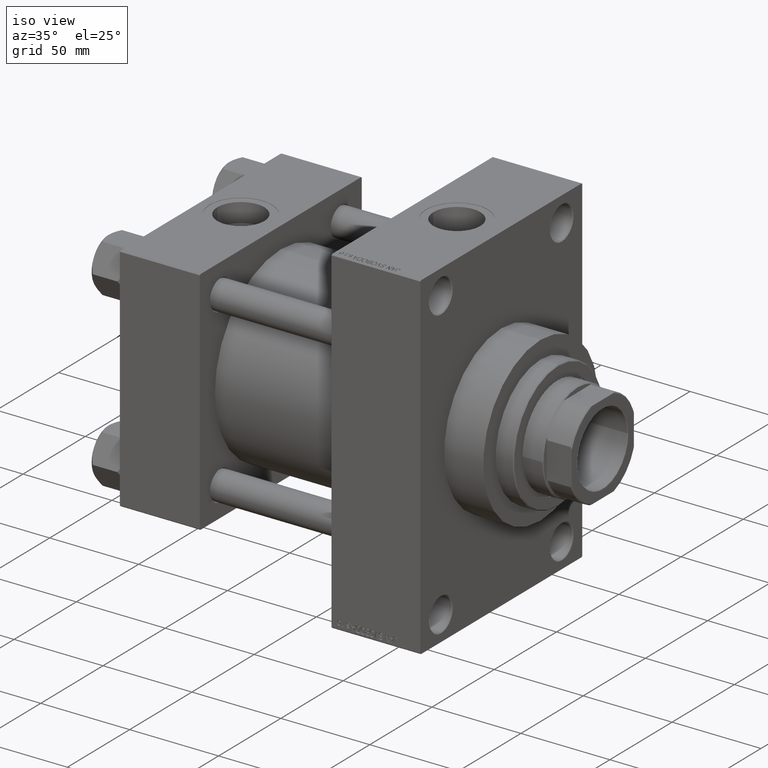
[diagram: clean part render]
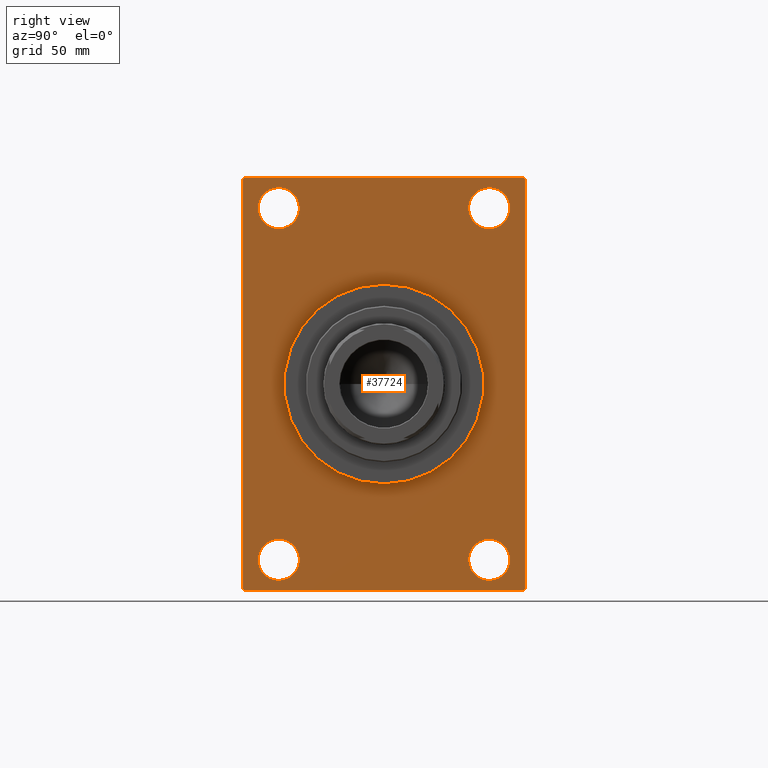
[diagram: tour spotlight — one face highlighted and labeled with its STEP entity id]
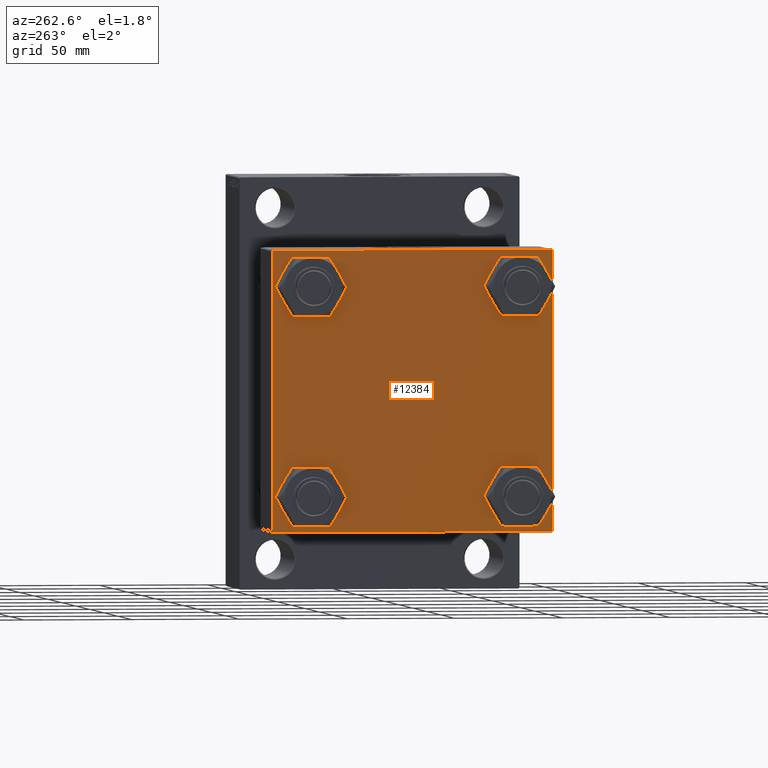
[diagram: tour spotlight — one face highlighted and labeled with its STEP entity id]
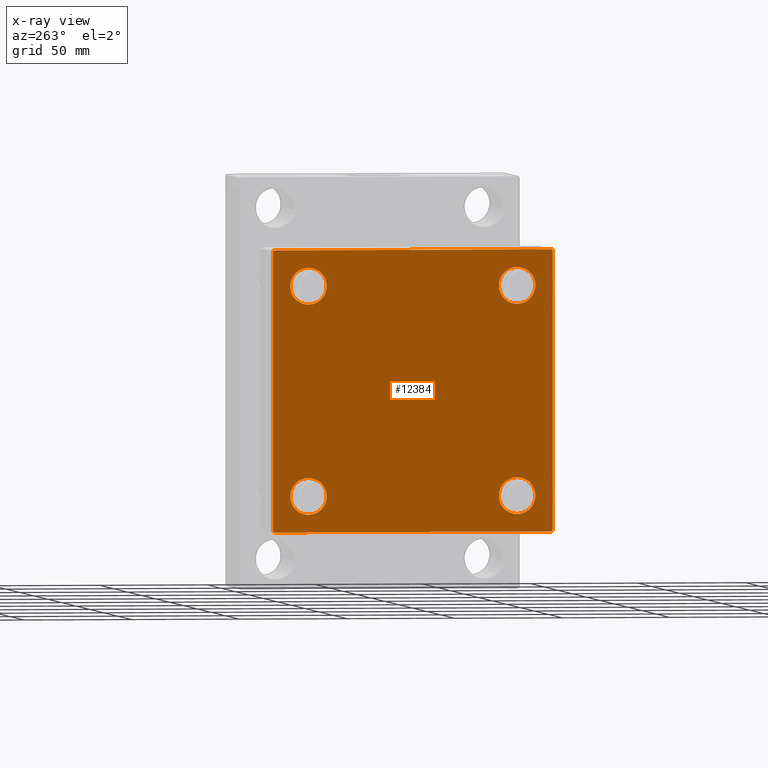
[diagram: x-ray of the same camera — body ghosted, this tour face saturated]
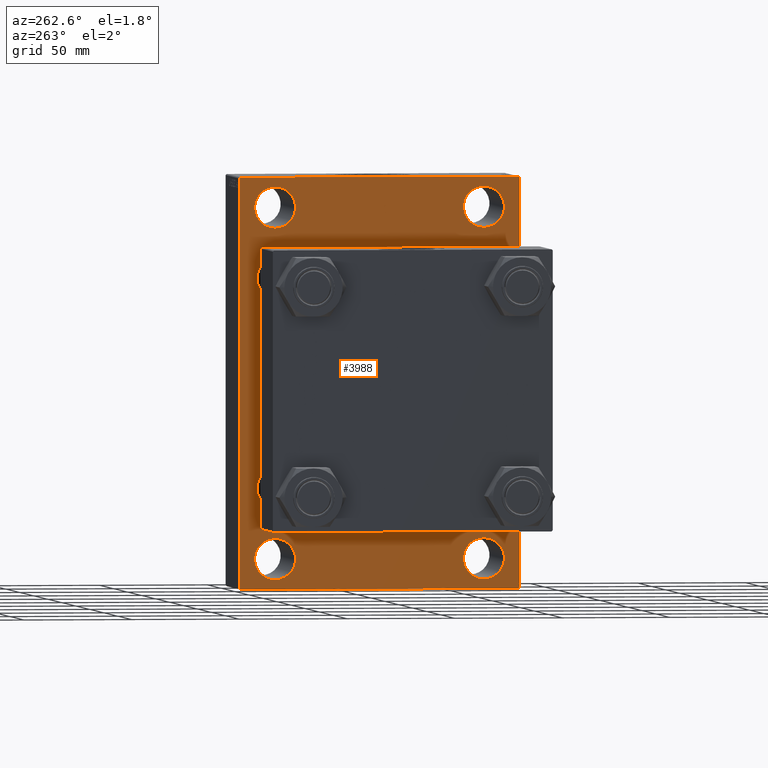
[diagram: tour spotlight — one face highlighted and labeled with its STEP entity id]
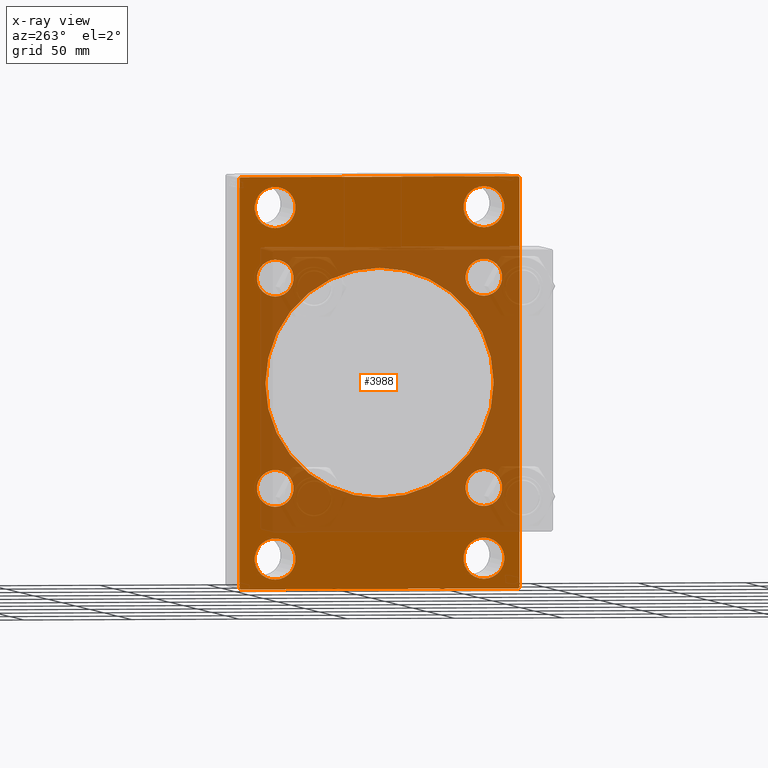
[diagram: x-ray of the same camera — body ghosted, this tour face saturated]
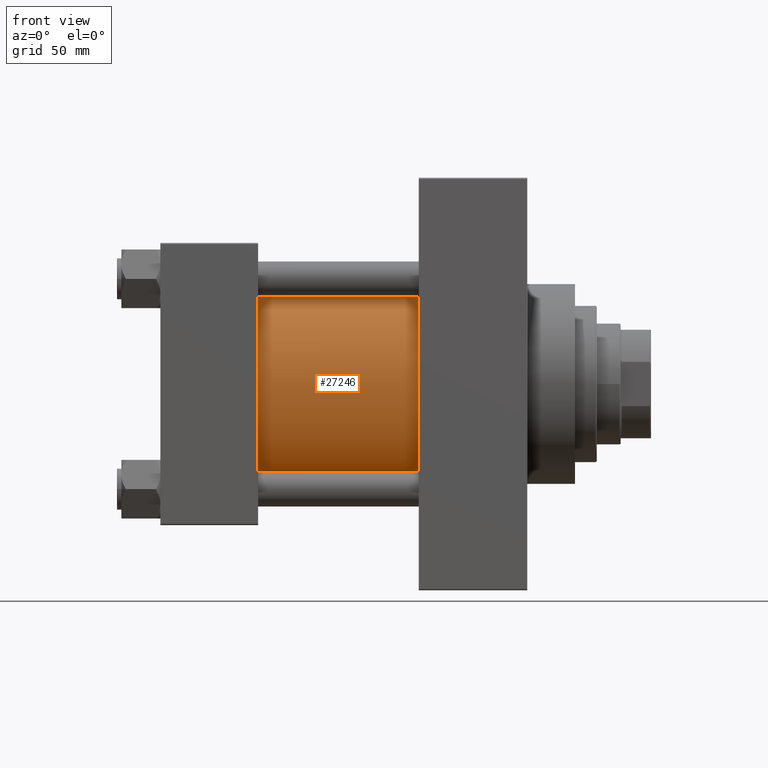
[diagram: tour spotlight — one face highlighted and labeled with its STEP entity id]
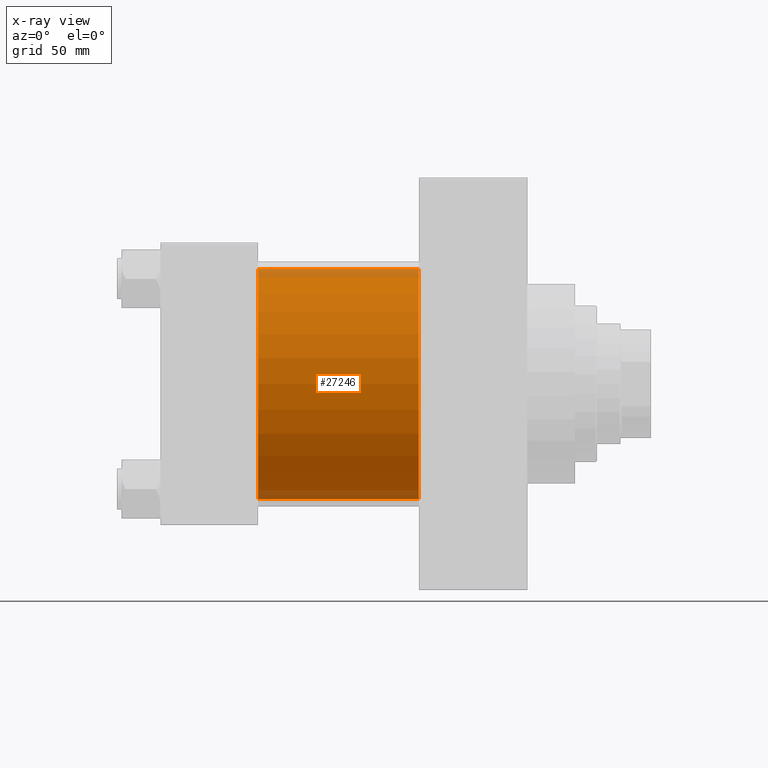
[diagram: x-ray of the same camera — body ghosted, this tour face saturated]
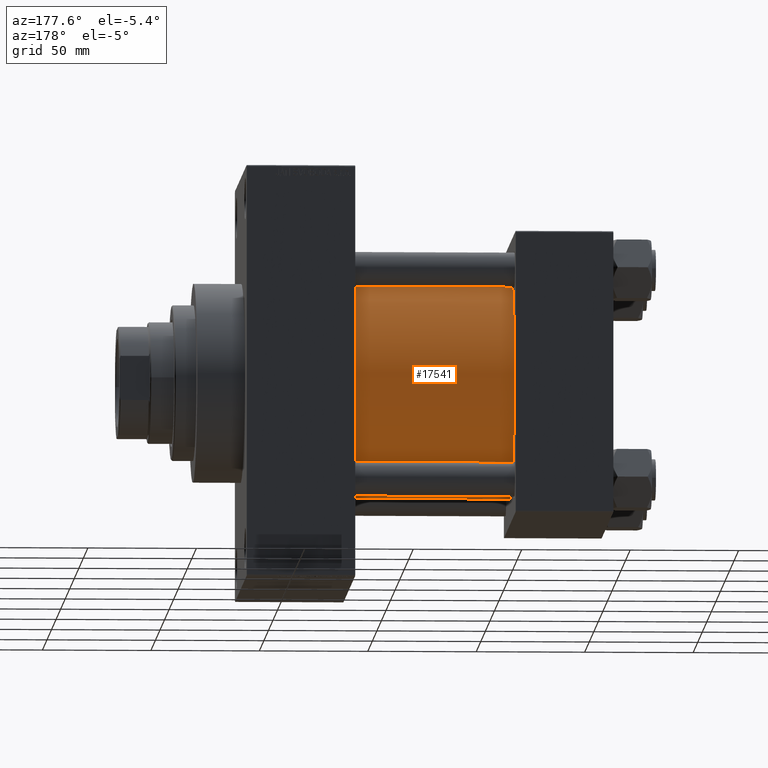
[diagram: tour spotlight — one face highlighted and labeled with its STEP entity id]
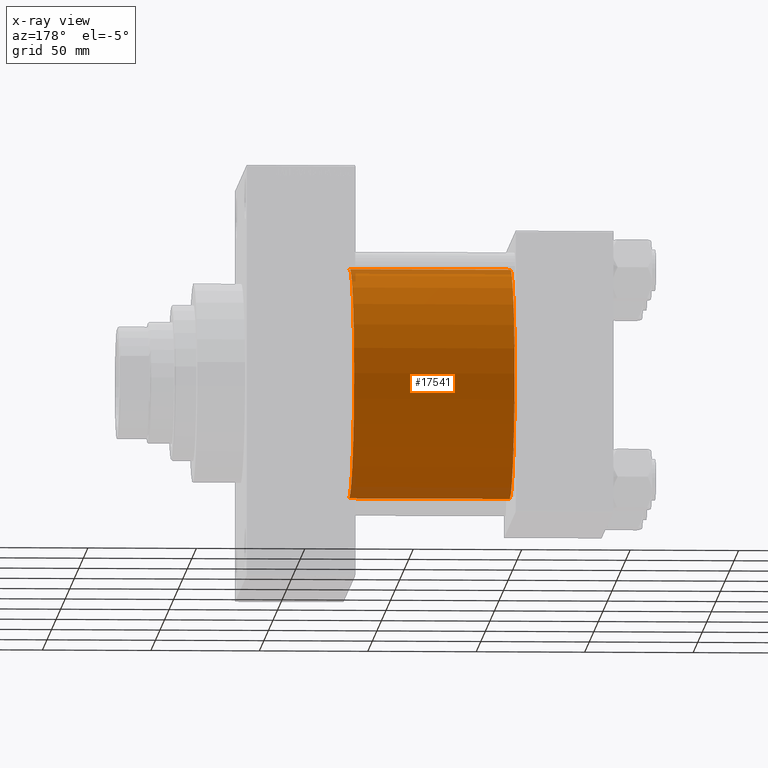
[diagram: x-ray of the same camera — body ghosted, this tour face saturated]
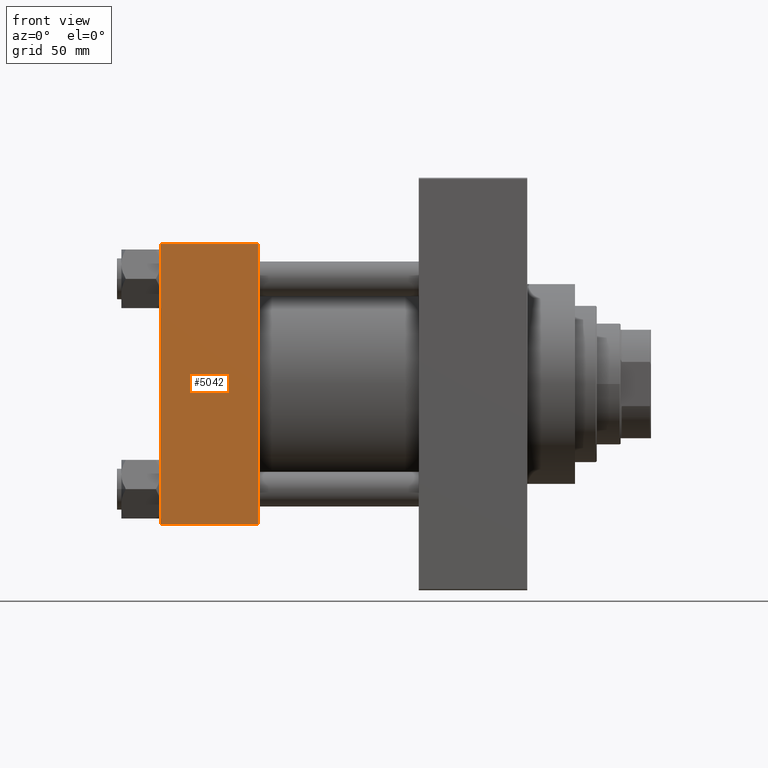
[diagram: tour spotlight — one face highlighted and labeled with its STEP entity id]
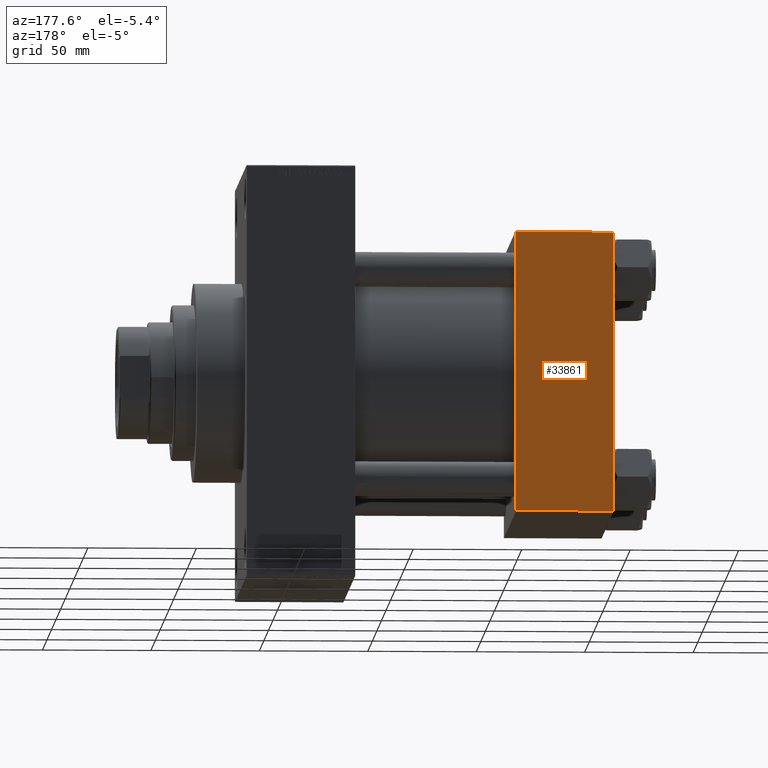
[diagram: tour spotlight — one face highlighted and labeled with its STEP entity id]
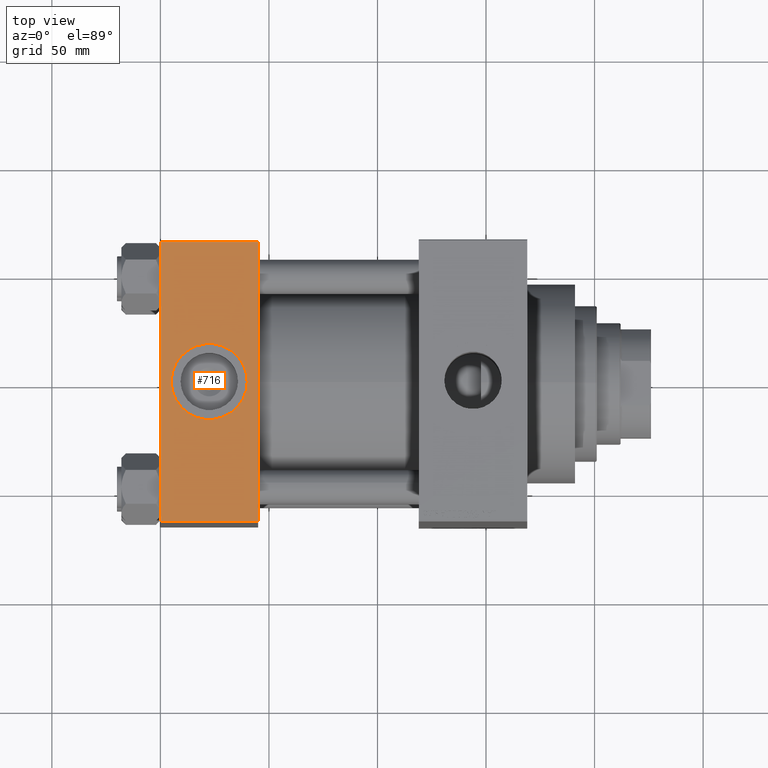
[diagram: tour spotlight — one face highlighted and labeled with its STEP entity id]
A machine part: a face-by-face anatomy tour. The part has 1151 B-rep faces; the first image is the clean iso view, then the 8 largest visible faces are spotlighted one at a time (largest first), each with its STEP entity span.

Face 1 — right view, entity #37724. In plain terms, the highlighted planar face has unit normal (-1, 0, 0).
Definition (entity closure, byte-faithful):
#552 = VECTOR ( 'NONE', #31008, 1000.000000000000000 ) ;
#1327 = LINE ( 'NONE', #37774, #552 ) ;
#1371 = ORIENTED_EDGE ( 'NONE', *, *, #8173, .T. ) ;
#1501 = CARTESIAN_POINT ( 'NONE',  ( 168.9999999999999716, 48.50000000000000711, -81.00000000000001421 ) ) ;
#1971 = DIRECTION ( 'NONE',  ( -1.000000000000000000, 0.000000000000000000, -0.000000000000000000 ) ) ;
#2622 = VERTEX_POINT ( 'NONE', #44628 ) ;
#3144 = ORIENTED_EDGE ( 'NONE', *, *, #40825, .T. ) ;
#3414 = AXIS2_PLACEMENT_3D ( 'NONE', #27553, #38427, #26832 ) ;
#3650 = CIRCLE ( 'NONE', #16751, 9.500000000000008882 ) ;
#3863 = CARTESIAN_POINT ( 'NONE',  ( 168.9999999999999716, 64.99999999999998579, -95.00000000000001421 ) ) ;
#3969 = CARTESIAN_POINT ( 'NONE',  ( 168.9999999999999716, -65.00000000000001421, 94.49999999999994316 ) ) ;
#4213 = VECTOR ( 'NONE', #36221, 1000.000000000000000 ) ;
#4307 = AXIS2_PLACEMENT_3D ( 'NONE', #19674, #4503, #19202 ) ;
#4503 = DIRECTION ( 'NONE',  ( -1.000000000000000000, 0.000000000000000000, -0.000000000000000000 ) ) ;
#4506 = VERTEX_POINT ( 'NONE', #23307 ) ;
#4615 = VERTEX_POINT ( 'NONE', #38759 ) ;
#4626 = CARTESIAN_POINT ( 'NONE',  ( 168.9999999999999716, 48.50000000000000711, 81.00000000000000000 ) ) ;
#4751 = VERTEX_POINT ( 'NONE', #44525 ) ;
#5077 = EDGE_CURVE ( 'NONE', #38921, #28381, #33472, .T. ) ;
#5276 = EDGE_CURVE ( 'NONE', #46967, #2622, #35038, .T. ) ;
#6379 = DIRECTION ( 'NONE',  ( -1.000000000000000000, 0.000000000000000000, -0.000000000000000000 ) ) ;
#6533 = EDGE_CURVE ( 'NONE', #28381, #38921, #21929, .T. ) ;
#7010 = LINE ( 'NONE', #3863, #4213 ) ;
#8020 = ORIENTED_EDGE ( 'NONE', *, *, #34660, .T. ) ;
#8173 = EDGE_CURVE ( 'NONE', #21368, #16122, #24321, .T. ) ;
#8623 = CARTESIAN_POINT ( 'NONE',  ( 168.9999999999999716, -48.50000000000000000, 71.50000000000000000 ) ) ;
#9262 = CARTESIAN_POINT ( 'NONE',  ( 168.9999999999999716, 5.633375276077824704E-15, -46.00000000000000000 ) ) ;
#9609 = CARTESIAN_POINT ( 'NONE',  ( 168.9999999999999716, -65.00000000000001421, 94.99999999999997158 ) ) ;
#9689 = DIRECTION ( 'NONE',  ( -1.000000000000000000, 0.000000000000000000, -0.000000000000000000 ) ) ;
#9768 = ORIENTED_EDGE ( 'NONE', *, *, #16508, .T. ) ;
#10394 = AXIS2_PLACEMENT_3D ( 'NONE', #28474, #35933, #43443 ) ;
#10698 = VECTOR ( 'NONE', #19564, 1000.000000000000000 ) ;
#11048 = EDGE_LOOP ( 'NONE', ( #44712, #20981 ) ) ;
#11282 = AXIS2_PLACEMENT_3D ( 'NONE', #24416, #9689, #12577 ) ;
#11302 = CARTESIAN_POINT ( 'NONE',  ( 168.9999999999999716, 64.49999999999998579, -95.00000000000001421 ) ) ;
#11833 = DIRECTION ( 'NONE',  ( -1.000000000000000000, 0.000000000000000000, -0.000000000000000000 ) ) ;
#12203 = FACE_BOUND ( 'NONE', #42569, .T. ) ;
#12577 = DIRECTION ( 'NONE',  ( 0.000000000000000000, 0.000000000000000000, 1.000000000000000000 ) ) ;
#13906 = DIRECTION ( 'NONE',  ( 0.000000000000000000, -0.7071067811865474617, 0.7071067811865474617 ) ) ;
#14385 = VERTEX_POINT ( 'NONE', #27522 ) ;
#14531 = DIRECTION ( 'NONE',  ( 0.000000000000000000, 7.304098846218135653E-17, -1.000000000000000000 ) ) ;
#15155 = CARTESIAN_POINT ( 'NONE',  ( 168.9999999999999716, -48.49999999999999289, -81.00000000000001421 ) ) ;
#15481 = CARTESIAN_POINT ( 'NONE',  ( 168.9999999999999716, -65.00000000000001421, 94.49999999999994316 ) ) ;
#16122 = VERTEX_POINT ( 'NONE', #42038 ) ;
#16194 = DIRECTION ( 'NONE',  ( 0.000000000000000000, 0.000000000000000000, 1.000000000000000000 ) ) ;
#16219 = DIRECTION ( 'NONE',  ( 0.000000000000000000, 0.000000000000000000, 1.000000000000000000 ) ) ;
#16296 = FACE_BOUND ( 'NONE', #16944, .T. ) ;
#16342 = EDGE_CURVE ( 'NONE', #24056, #21038, #19676, .T. ) ;
#16508 = EDGE_CURVE ( 'NONE', #4506, #4751, #3650, .T. ) ;
#16687 = ORIENTED_EDGE ( 'NONE', *, *, #5077, .F. ) ;
#16696 = CARTESIAN_POINT ( 'NONE',  ( 168.9999999999999716, -48.49999999999999289, -81.00000000000001421 ) ) ;
#16751 = AXIS2_PLACEMENT_3D ( 'NONE', #28379, #17011, #39716 ) ;
#16944 = EDGE_LOOP ( 'NONE', ( #43509, #25853 ) ) ;
#17011 = DIRECTION ( 'NONE',  ( -1.000000000000000000, 0.000000000000000000, -0.000000000000000000 ) ) ;
#17077 = LINE ( 'NONE', #9609, #10698 ) ;
#17522 = AXIS2_PLACEMENT_3D ( 'NONE', #16696, #34813, #16219 ) ;
#17526 = CARTESIAN_POINT ( 'NONE',  ( 168.9999999999999716, 64.49999999999994316, 94.99999999999997158 ) ) ;
#17839 = AXIS2_PLACEMENT_3D ( 'NONE', #33329, #44459, #19312 ) ;
#18527 = ORIENTED_EDGE ( 'NONE', *, *, #31841, .F. ) ;
#18606 = ORIENTED_EDGE ( 'NONE', *, *, #45198, .T. ) ;
#18969 = VERTEX_POINT ( 'NONE', #22109 ) ;
#19202 = DIRECTION ( 'NONE',  ( -0.000000000000000000, 0.000000000000000000, 1.000000000000000000 ) ) ;
#19232 = ORIENTED_EDGE ( 'NONE', *, *, #6533, .F. ) ;
#19312 = DIRECTION ( 'NONE',  ( 0.000000000000000000, 0.000000000000000000, 1.000000000000000000 ) ) ;
#19480 = EDGE_CURVE ( 'NONE', #24258, #21368, #17077, .T. ) ;
#19564 = DIRECTION ( 'NONE',  ( 0.000000000000000000, 0.000000000000000000, -1.000000000000000000 ) ) ;
#19674 = CARTESIAN_POINT ( 'NONE',  ( 168.9999999999999716, 0.000000000000000000, 0.000000000000000000 ) ) ;
#19676 = LINE ( 'NONE', #41436, #37575 ) ;
#20981 = ORIENTED_EDGE ( 'NONE', *, *, #5276, .T. ) ;
#21038 = VERTEX_POINT ( 'NONE', #38906 ) ;
#21069 = DIRECTION ( 'NONE',  ( 0.000000000000000000, 0.000000000000000000, 1.000000000000000000 ) ) ;
#21368 = VERTEX_POINT ( 'NONE', #27972 ) ;
#21547 = CARTESIAN_POINT ( 'NONE',  ( 168.9999999999999716, 0.000000000000000000, 46.00000000000000000 ) ) ;
#21929 = CIRCLE ( 'NONE', #10394, 46.00000000000000000 ) ;
#22109 = CARTESIAN_POINT ( 'NONE',  ( 168.9999999999999716, 64.99999999999997158, 94.49999999999994316 ) ) ;
#22677 = AXIS2_PLACEMENT_3D ( 'NONE', #1501, #1971, #16194 ) ;
#22826 = FACE_BOUND ( 'NONE', #11048, .T. ) ;
#23187 = CIRCLE ( 'NONE', #17839, 9.500000000000008882 ) ;
#23307 = CARTESIAN_POINT ( 'NONE',  ( 168.9999999999999716, 48.50000000000000711, 71.50000000000000000 ) ) ;
#23624 = CIRCLE ( 'NONE', #11282, 9.500000000000008882 ) ;
#23711 = EDGE_CURVE ( 'NONE', #43980, #14385, #23187, .T. ) ;
#24056 = VERTEX_POINT ( 'NONE', #11302 ) ;
#24258 = VERTEX_POINT ( 'NONE', #3969 ) ;
#24321 = LINE ( 'NONE', #46787, #45943 ) ;
#24416 = CARTESIAN_POINT ( 'NONE',  ( 168.9999999999999716, 48.50000000000000711, -81.00000000000001421 ) ) ;
#24616 = LINE ( 'NONE', #15481, #31986 ) ;
#24720 = CARTESIAN_POINT ( 'NONE',  ( 168.9999999999999716, -48.50000000000000000, 81.00000000000000000 ) ) ;
#24957 = AXIS2_PLACEMENT_3D ( 'NONE', #4626, #11833, #41065 ) ;
#25853 = ORIENTED_EDGE ( 'NONE', *, *, #25891, .T. ) ;
#25891 = EDGE_CURVE ( 'NONE', #14385, #43980, #26355, .T. ) ;
#26051 = DIRECTION ( 'NONE',  ( 0.000000000000000000, 0.000000000000000000, 1.000000000000000000 ) ) ;
#26355 = CIRCLE ( 'NONE', #27117, 9.500000000000008882 ) ;
#26689 = FACE_BOUND ( 'NONE', #32859, .T. ) ;
#26700 = EDGE_CURVE ( 'NONE', #18969, #4615, #39505, .T. ) ;
#26832 = DIRECTION ( 'NONE',  ( 0.000000000000000000, 0.000000000000000000, -1.000000000000000000 ) ) ;
#26850 = DIRECTION ( 'NONE',  ( -0.000000000000000000, -0.7071067811865573427, -0.7071067811865378028 ) ) ;
#27117 = AXIS2_PLACEMENT_3D ( 'NONE', #24720, #6379, #21069 ) ;
#27313 = EDGE_LOOP ( 'NONE', ( #41201, #1371, #40806, #46350, #18527, #45452, #3144, #8020 ) ) ;
#27522 = CARTESIAN_POINT ( 'NONE',  ( 168.9999999999999716, -48.50000000000000000, 90.50000000000001421 ) ) ;
#27553 = CARTESIAN_POINT ( 'NONE',  ( 168.9999999999999716, 0.000000000000000000, 0.000000000000000000 ) ) ;
#27972 = CARTESIAN_POINT ( 'NONE',  ( 168.9999999999999716, -65.00000000000001421, -94.50000000000008527 ) ) ;
#28016 = VECTOR ( 'NONE', #14531, 1000.000000000000000 ) ;
#28379 = CARTESIAN_POINT ( 'NONE',  ( 168.9999999999999716, 48.50000000000000711, 81.00000000000000000 ) ) ;
#28381 = VERTEX_POINT ( 'NONE', #21547 ) ;
#28474 = CARTESIAN_POINT ( 'NONE',  ( 168.9999999999999716, 0.000000000000000000, 0.000000000000000000 ) ) ;
#28661 = DIRECTION ( 'NONE',  ( 0.000000000000000000, 0.7071067811865474617, -0.7071067811865474617 ) ) ;
#28968 = CARTESIAN_POINT ( 'NONE',  ( 168.9999999999999716, -48.49999999999999289, -71.50000000000001421 ) ) ;
#29033 = LINE ( 'NONE', #32881, #28016 ) ;
#29812 = VERTEX_POINT ( 'NONE', #44143 ) ;
#30095 = EDGE_CURVE ( 'NONE', #4751, #4506, #42728, .T. ) ;
#31008 = DIRECTION ( 'NONE',  ( 0.000000000000000000, -1.000000000000000000, 0.000000000000000000 ) ) ;
#31036 = FACE_OUTER_BOUND ( 'NONE', #27313, .T. ) ;
#31297 = EDGE_CURVE ( 'NONE', #24056, #16122, #7010, .T. ) ;
#31592 = ORIENTED_EDGE ( 'NONE', *, *, #30095, .T. ) ;
#31841 = EDGE_CURVE ( 'NONE', #18969, #21038, #29033, .T. ) ;
#31986 = VECTOR ( 'NONE', #26850, 1000.000000000000000 ) ;
#32223 = CIRCLE ( 'NONE', #17522, 9.500000000000008882 ) ;
#32859 = EDGE_LOOP ( 'NONE', ( #19232, #16687 ) ) ;
#32881 = CARTESIAN_POINT ( 'NONE',  ( 168.9999999999999716, 64.99999999999997158, 94.99999999999997158 ) ) ;
#33329 = CARTESIAN_POINT ( 'NONE',  ( 168.9999999999999716, -48.50000000000000000, 81.00000000000000000 ) ) ;
#33472 = CIRCLE ( 'NONE', #3414, 46.00000000000000000 ) ;
#34100 = VECTOR ( 'NONE', #13906, 1000.000000000000114 ) ;
#34478 = CIRCLE ( 'NONE', #36793, 9.500000000000008882 ) ;
#34660 = EDGE_CURVE ( 'NONE', #29812, #24258, #24616, .T. ) ;
#34813 = DIRECTION ( 'NONE',  ( -1.000000000000000000, 0.000000000000000000, -0.000000000000000000 ) ) ;
#34891 = PLANE ( 'NONE',  #4307 ) ;
#34893 = DIRECTION ( 'NONE',  ( -0.000000000000000000, 0.7071067811865573427, 0.7071067811865378028 ) ) ;
#35038 = CIRCLE ( 'NONE', #22677, 9.500000000000008882 ) ;
#35933 = DIRECTION ( 'NONE',  ( 1.000000000000000000, 0.000000000000000000, 0.000000000000000000 ) ) ;
#36221 = DIRECTION ( 'NONE',  ( 0.000000000000000000, -1.000000000000000000, -1.067522139062650425E-16 ) ) ;
#36678 = DIRECTION ( 'NONE',  ( -1.000000000000000000, 0.000000000000000000, -0.000000000000000000 ) ) ;
#36793 = AXIS2_PLACEMENT_3D ( 'NONE', #15155, #36678, #26051 ) ;
#37560 = FACE_BOUND ( 'NONE', #46590, .T. ) ;
#37575 = VECTOR ( 'NONE', #34893, 1000.000000000000000 ) ;
#37724 = ADVANCED_FACE ( 'NONE', ( #16296, #12203, #22826, #37560, #26689, #31036 ), #34891, .F. ) ;
#37774 = CARTESIAN_POINT ( 'NONE',  ( 168.9999999999999716, 64.99999999999997158, 94.99999999999997158 ) ) ;
#38427 = DIRECTION ( 'NONE',  ( 1.000000000000000000, 0.000000000000000000, 0.000000000000000000 ) ) ;
#38759 = CARTESIAN_POINT ( 'NONE',  ( 168.9999999999999716, 64.49999999999994316, 94.99999999999997158 ) ) ;
#38906 = CARTESIAN_POINT ( 'NONE',  ( 168.9999999999999716, 64.99999999999998579, -94.50000000000002842 ) ) ;
#38921 = VERTEX_POINT ( 'NONE', #9262 ) ;
#39505 = LINE ( 'NONE', #17526, #34100 ) ;
#39716 = DIRECTION ( 'NONE',  ( 0.000000000000000000, 0.000000000000000000, 1.000000000000000000 ) ) ;
#39859 = EDGE_CURVE ( 'NONE', #2622, #46967, #23624, .T. ) ;
#40806 = ORIENTED_EDGE ( 'NONE', *, *, #31297, .F. ) ;
#40825 = EDGE_CURVE ( 'NONE', #4615, #29812, #1327, .T. ) ;
#41065 = DIRECTION ( 'NONE',  ( 0.000000000000000000, 0.000000000000000000, 1.000000000000000000 ) ) ;
#41201 = ORIENTED_EDGE ( 'NONE', *, *, #19480, .T. ) ;
#41436 = CARTESIAN_POINT ( 'NONE',  ( 168.9999999999999716, 64.99999999999998579, -94.50000000000002842 ) ) ;
#41700 = EDGE_CURVE ( 'NONE', #45107, #41722, #34478, .T. ) ;
#41722 = VERTEX_POINT ( 'NONE', #28968 ) ;
#42038 = CARTESIAN_POINT ( 'NONE',  ( 168.9999999999999716, -64.50000000000007105, -95.00000000000002842 ) ) ;
#42384 = CARTESIAN_POINT ( 'NONE',  ( 168.9999999999999716, 48.50000000000000711, -71.50000000000001421 ) ) ;
#42569 = EDGE_LOOP ( 'NONE', ( #43496, #18606 ) ) ;
#42728 = CIRCLE ( 'NONE', #24957, 9.500000000000008882 ) ;
#43443 = DIRECTION ( 'NONE',  ( 0.000000000000000000, 0.000000000000000000, -1.000000000000000000 ) ) ;
#43496 = ORIENTED_EDGE ( 'NONE', *, *, #41700, .T. ) ;
#43509 = ORIENTED_EDGE ( 'NONE', *, *, #23711, .T. ) ;
#43980 = VERTEX_POINT ( 'NONE', #8623 ) ;
#44143 = CARTESIAN_POINT ( 'NONE',  ( 168.9999999999999716, -64.49999999999997158, 94.99999999999997158 ) ) ;
#44459 = DIRECTION ( 'NONE',  ( -1.000000000000000000, 0.000000000000000000, -0.000000000000000000 ) ) ;
#44525 = CARTESIAN_POINT ( 'NONE',  ( 168.9999999999999716, 48.50000000000000711, 90.50000000000001421 ) ) ;
#44628 = CARTESIAN_POINT ( 'NONE',  ( 168.9999999999999716, 48.50000000000000711, -90.50000000000002842 ) ) ;
#44712 = ORIENTED_EDGE ( 'NONE', *, *, #39859, .T. ) ;
#45107 = VERTEX_POINT ( 'NONE', #46662 ) ;
#45198 = EDGE_CURVE ( 'NONE', #41722, #45107, #32223, .T. ) ;
#45452 = ORIENTED_EDGE ( 'NONE', *, *, #26700, .T. ) ;
#45943 = VECTOR ( 'NONE', #28661, 1000.000000000000114 ) ;
#46350 = ORIENTED_EDGE ( 'NONE', *, *, #16342, .T. ) ;
#46590 = EDGE_LOOP ( 'NONE', ( #9768, #31592 ) ) ;
#46662 = CARTESIAN_POINT ( 'NONE',  ( 168.9999999999999716, -48.49999999999999289, -90.50000000000002842 ) ) ;
#46787 = CARTESIAN_POINT ( 'NONE',  ( 168.9999999999999716, -64.50000000000007105, -95.00000000000002842 ) ) ;
#46967 = VERTEX_POINT ( 'NONE', #42384 ) ;

Face 2 — auxiliary view, entity #12384. An x-ray twin of the same camera follows (body ghosted, this face saturated) — the face is partly hidden behind the body. In plain terms, the highlighted planar face has unit normal (-1, 0, 0).
Definition (entity closure, byte-faithful):
#276 = CIRCLE ( 'NONE', #19550, 8.500000000000007105 ) ;
#408 = ORIENTED_EDGE ( 'NONE', *, *, #45306, .T. ) ;
#446 = ORIENTED_EDGE ( 'NONE', *, *, #34324, .F. ) ;
#487 = DIRECTION ( 'NONE',  ( 1.000000000000000000, -0.000000000000000000, 0.000000000000000000 ) ) ;
#1478 = CIRCLE ( 'NONE', #34612, 8.500000000000007105 ) ;
#2086 = VERTEX_POINT ( 'NONE', #19897 ) ;
#2215 = VECTOR ( 'NONE', #43958, 1000.000000000000000 ) ;
#2265 = CARTESIAN_POINT ( 'NONE',  ( 0.000000000000000000, -64.49999999999997158, 65.00000000000000000 ) ) ;
#2394 = DIRECTION ( 'NONE',  ( 1.000000000000000000, -0.000000000000000000, 0.000000000000000000 ) ) ;
#3058 = DIRECTION ( 'NONE',  ( 1.000000000000000000, -0.000000000000000000, 0.000000000000000000 ) ) ;
#3368 = ORIENTED_EDGE ( 'NONE', *, *, #18803, .T. ) ;
#3896 = CARTESIAN_POINT ( 'NONE',  ( 0.000000000000000000, -48.44999999999999574, -48.45000000000003126 ) ) ;
#4158 = LINE ( 'NONE', #22255, #39666 ) ;
#5036 = EDGE_CURVE ( 'NONE', #46725, #29684, #4158, .T. ) ;
#5406 = EDGE_CURVE ( 'NONE', #9066, #35693, #40416, .T. ) ;
#5433 = LINE ( 'NONE', #11926, #28093 ) ;
#5485 = DIRECTION ( 'NONE',  ( 0.000000000000000000, 0.000000000000000000, 1.000000000000000000 ) ) ;
#5627 = VECTOR ( 'NONE', #14112, 1000.000000000000000 ) ;
#5641 = FACE_OUTER_BOUND ( 'NONE', #45549, .T. ) ;
#5863 = ORIENTED_EDGE ( 'NONE', *, *, #28020, .F. ) ;
#6045 = CIRCLE ( 'NONE', #22965, 8.500000000000007105 ) ;
#6254 = DIRECTION ( 'NONE',  ( 0.000000000000000000, 0.000000000000000000, 1.000000000000000000 ) ) ;
#6329 = DIRECTION ( 'NONE',  ( 0.000000000000000000, 0.000000000000000000, 1.000000000000000000 ) ) ;
#7126 = LINE ( 'NONE', #47004, #5627 ) ;
#7170 = VECTOR ( 'NONE', #24342, 1000.000000000000114 ) ;
#7556 = LINE ( 'NONE', #29753, #44875 ) ;
#7672 = VERTEX_POINT ( 'NONE', #16037 ) ;
#9039 = DIRECTION ( 'NONE',  ( 0.000000000000000000, 0.000000000000000000, -1.000000000000000000 ) ) ;
#9066 = VERTEX_POINT ( 'NONE', #29421 ) ;
#9577 = VERTEX_POINT ( 'NONE', #2265 ) ;
#9788 = ORIENTED_EDGE ( 'NONE', *, *, #33258, .T. ) ;
#9947 = VERTEX_POINT ( 'NONE', #43244 ) ;
#10120 = DIRECTION ( 'NONE',  ( 0.000000000000000000, 0.7071067811865474617, -0.7071067811865474617 ) ) ;
#10271 = DIRECTION ( 'NONE',  ( 0.000000000000000000, 0.000000000000000000, 1.000000000000000000 ) ) ;
#10343 = CARTESIAN_POINT ( 'NONE',  ( 0.000000000000000000, -64.49999999999994316, -65.00000000000000000 ) ) ;
#10506 = CARTESIAN_POINT ( 'NONE',  ( 0.000000000000000000, -48.44999999999999574, 48.45000000000003126 ) ) ;
#11228 = CARTESIAN_POINT ( 'NONE',  ( 0.000000000000000000, 48.45000000000000995, -39.95000000000000284 ) ) ;
#11326 = LINE ( 'NONE', #22428, #2215 ) ;
#11687 = EDGE_LOOP ( 'NONE', ( #36646, #44610 ) ) ;
#11723 = AXIS2_PLACEMENT_3D ( 'NONE', #41593, #28050, #6329 ) ;
#11926 = CARTESIAN_POINT ( 'NONE',  ( 0.000000000000000000, -65.00000000000000000, 65.00000000000000000 ) ) ;
#12034 = CARTESIAN_POINT ( 'NONE',  ( 0.000000000000000000, -65.00000000000000000, -64.49999999999991473 ) ) ;
#12280 = CARTESIAN_POINT ( 'NONE',  ( 0.000000000000000000, 48.45000000000000995, -48.45000000000001705 ) ) ;
#12384 = ADVANCED_FACE ( 'NONE', ( #12856, #45237, #19866, #27355, #5641 ), #42099, .T. ) ;
#12856 = FACE_BOUND ( 'NONE', #11687, .T. ) ;
#13476 = DIRECTION ( 'NONE',  ( 1.000000000000000000, -0.000000000000000000, 0.000000000000000000 ) ) ;
#14043 = CIRCLE ( 'NONE', #11723, 8.500000000000007105 ) ;
#14112 = DIRECTION ( 'NONE',  ( 0.000000000000000000, -1.000000000000000000, -1.067522139062650425E-16 ) ) ;
#14214 = AXIS2_PLACEMENT_3D ( 'NONE', #12280, #30639, #27012 ) ;
#14824 = ORIENTED_EDGE ( 'NONE', *, *, #25937, .T. ) ;
#15574 = ORIENTED_EDGE ( 'NONE', *, *, #5036, .T. ) ;
#15741 = CARTESIAN_POINT ( 'NONE',  ( 0.000000000000000000, -48.44999999999999574, 56.95000000000003837 ) ) ;
#16037 = CARTESIAN_POINT ( 'NONE',  ( 0.000000000000000000, 48.45000000000000995, 56.95000000000002416 ) ) ;
#16054 = EDGE_LOOP ( 'NONE', ( #24328, #33935 ) ) ;
#16339 = ORIENTED_EDGE ( 'NONE', *, *, #30654, .T. ) ;
#16849 = LINE ( 'NONE', #42710, #7170 ) ;
#17034 = CARTESIAN_POINT ( 'NONE',  ( 0.000000000000000000, 48.45000000000000995, -48.45000000000001705 ) ) ;
#18803 = EDGE_CURVE ( 'NONE', #35354, #28059, #11326, .T. ) ;
#19231 = AXIS2_PLACEMENT_3D ( 'NONE', #39798, #13476, #36641 ) ;
#19550 = AXIS2_PLACEMENT_3D ( 'NONE', #17034, #31545, #24772 ) ;
#19866 = FACE_BOUND ( 'NONE', #26495, .T. ) ;
#19897 = CARTESIAN_POINT ( 'NONE',  ( 0.000000000000000000, -48.44999999999999574, -39.95000000000001705 ) ) ;
#20336 = DIRECTION ( 'NONE',  ( -1.000000000000000000, 0.000000000000000000, -0.000000000000000000 ) ) ;
#20762 = EDGE_CURVE ( 'NONE', #7672, #38136, #1478, .T. ) ;
#21530 = EDGE_CURVE ( 'NONE', #44906, #37124, #40074, .T. ) ;
#21596 = CARTESIAN_POINT ( 'NONE',  ( 0.000000000000000000, -64.75000000000176215, -64.74999999999816680 ) ) ;
#21731 = CIRCLE ( 'NONE', #44123, 8.500000000000007105 ) ;
#21812 = EDGE_CURVE ( 'NONE', #9947, #35354, #31378, .T. ) ;
#22255 = CARTESIAN_POINT ( 'NONE',  ( 0.000000000000000000, 65.00000000000000000, -64.99999999999998579 ) ) ;
#22269 = DIRECTION ( 'NONE',  ( -0.000000000000000000, 0.7071067811865672237, 0.7071067811865279218 ) ) ;
#22428 = CARTESIAN_POINT ( 'NONE',  ( 0.000000000000000000, 65.00000000000000000, 65.00000000000001421 ) ) ;
#22965 = AXIS2_PLACEMENT_3D ( 'NONE', #10506, #3058, #10271 ) ;
#24328 = ORIENTED_EDGE ( 'NONE', *, *, #20762, .T. ) ;
#24342 = DIRECTION ( 'NONE',  ( -0.000000000000000000, -0.7071067811865474617, -0.7071067811865474617 ) ) ;
#24772 = DIRECTION ( 'NONE',  ( 0.000000000000000000, 0.000000000000000000, 1.000000000000000000 ) ) ;
#25172 = DIRECTION ( 'NONE',  ( -0.000000000000000000, 0.000000000000000000, 1.000000000000000000 ) ) ;
#25234 = LINE ( 'NONE', #21596, #28097 ) ;
#25426 = VECTOR ( 'NONE', #10120, 1000.000000000000114 ) ;
#25459 = EDGE_CURVE ( 'NONE', #2086, #47041, #21731, .T. ) ;
#25937 = EDGE_CURVE ( 'NONE', #32976, #9577, #7556, .T. ) ;
#26495 = EDGE_LOOP ( 'NONE', ( #9788, #40478 ) ) ;
#26747 = CARTESIAN_POINT ( 'NONE',  ( 0.000000000000000000, 64.49999999999997158, -64.99999999999998579 ) ) ;
#26839 = EDGE_CURVE ( 'NONE', #38136, #7672, #14043, .T. ) ;
#27012 = DIRECTION ( 'NONE',  ( 0.000000000000000000, 0.000000000000000000, 1.000000000000000000 ) ) ;
#27355 = FACE_BOUND ( 'NONE', #16054, .T. ) ;
#27461 = EDGE_CURVE ( 'NONE', #28059, #46725, #16849, .T. ) ;
#27660 = ORIENTED_EDGE ( 'NONE', *, *, #21812, .T. ) ;
#28020 = EDGE_CURVE ( 'NONE', #9947, #9577, #7126, .T. ) ;
#28050 = DIRECTION ( 'NONE',  ( 1.000000000000000000, -0.000000000000000000, 0.000000000000000000 ) ) ;
#28059 = VERTEX_POINT ( 'NONE', #37041 ) ;
#28093 = VECTOR ( 'NONE', #9039, 1000.000000000000000 ) ;
#28097 = VECTOR ( 'NONE', #39967, 1000.000000000000000 ) ;
#28363 = AXIS2_PLACEMENT_3D ( 'NONE', #3896, #33555, #29706 ) ;
#28664 = ORIENTED_EDGE ( 'NONE', *, *, #27461, .T. ) ;
#29109 = CIRCLE ( 'NONE', #28363, 8.500000000000007105 ) ;
#29268 = DIRECTION ( 'NONE',  ( 0.000000000000000000, -1.000000000000000000, -1.067522139062650425E-16 ) ) ;
#29421 = CARTESIAN_POINT ( 'NONE',  ( 0.000000000000000000, 48.45000000000000995, -56.95000000000002416 ) ) ;
#29684 = VERTEX_POINT ( 'NONE', #10343 ) ;
#29706 = DIRECTION ( 'NONE',  ( 0.000000000000000000, 0.000000000000000000, 1.000000000000000000 ) ) ;
#29753 = CARTESIAN_POINT ( 'NONE',  ( -0.000000000000000000, -64.74999999999819522, 64.75000000000179057 ) ) ;
#30639 = DIRECTION ( 'NONE',  ( 1.000000000000000000, -0.000000000000000000, 0.000000000000000000 ) ) ;
#30654 = EDGE_CURVE ( 'NONE', #29684, #32149, #25234, .T. ) ;
#31378 = LINE ( 'NONE', #42981, #25426 ) ;
#31545 = DIRECTION ( 'NONE',  ( 1.000000000000000000, -0.000000000000000000, 0.000000000000000000 ) ) ;
#32149 = VERTEX_POINT ( 'NONE', #12034 ) ;
#32976 = VERTEX_POINT ( 'NONE', #45858 ) ;
#33258 = EDGE_CURVE ( 'NONE', #35693, #9066, #276, .T. ) ;
#33555 = DIRECTION ( 'NONE',  ( 1.000000000000000000, -0.000000000000000000, 0.000000000000000000 ) ) ;
#33935 = ORIENTED_EDGE ( 'NONE', *, *, #26839, .T. ) ;
#34012 = CARTESIAN_POINT ( 'NONE',  ( 0.000000000000000000, -48.44999999999999574, -48.45000000000003126 ) ) ;
#34324 = EDGE_CURVE ( 'NONE', #32976, #32149, #5433, .T. ) ;
#34612 = AXIS2_PLACEMENT_3D ( 'NONE', #39325, #2394, #6254 ) ;
#35354 = VERTEX_POINT ( 'NONE', #43334 ) ;
#35693 = VERTEX_POINT ( 'NONE', #11228 ) ;
#36641 = DIRECTION ( 'NONE',  ( 0.000000000000000000, 0.000000000000000000, 1.000000000000000000 ) ) ;
#36646 = ORIENTED_EDGE ( 'NONE', *, *, #43255, .T. ) ;
#37041 = CARTESIAN_POINT ( 'NONE',  ( 0.000000000000000000, 65.00000000000000000, -64.49999999999995737 ) ) ;
#37124 = VERTEX_POINT ( 'NONE', #15741 ) ;
#37668 = ORIENTED_EDGE ( 'NONE', *, *, #25459, .T. ) ;
#38136 = VERTEX_POINT ( 'NONE', #47627 ) ;
#39325 = CARTESIAN_POINT ( 'NONE',  ( 0.000000000000000000, 48.45000000000000995, 48.45000000000001705 ) ) ;
#39666 = VECTOR ( 'NONE', #29268, 1000.000000000000000 ) ;
#39798 = CARTESIAN_POINT ( 'NONE',  ( 0.000000000000000000, -48.44999999999999574, 48.45000000000003126 ) ) ;
#39967 = DIRECTION ( 'NONE',  ( 0.000000000000000000, -0.7071067811865279218, 0.7071067811865671127 ) ) ;
#40074 = CIRCLE ( 'NONE', #19231, 8.500000000000007105 ) ;
#40171 = CARTESIAN_POINT ( 'NONE',  ( 0.000000000000000000, -48.44999999999999574, 39.95000000000001705 ) ) ;
#40416 = CIRCLE ( 'NONE', #14214, 8.500000000000007105 ) ;
#40478 = ORIENTED_EDGE ( 'NONE', *, *, #5406, .T. ) ;
#41415 = AXIS2_PLACEMENT_3D ( 'NONE', #42356, #20336, #25172 ) ;
#41435 = EDGE_LOOP ( 'NONE', ( #37668, #408 ) ) ;
#41593 = CARTESIAN_POINT ( 'NONE',  ( 0.000000000000000000, 48.45000000000000995, 48.45000000000001705 ) ) ;
#42099 = PLANE ( 'NONE',  #41415 ) ;
#42356 = CARTESIAN_POINT ( 'NONE',  ( 0.000000000000000000, 0.000000000000000000, 0.000000000000000000 ) ) ;
#42710 = CARTESIAN_POINT ( 'NONE',  ( 0.000000000000000000, 64.74999999999997158, -64.74999999999997158 ) ) ;
#42981 = CARTESIAN_POINT ( 'NONE',  ( 0.000000000000000000, 64.74999999999998579, 64.74999999999998579 ) ) ;
#43244 = CARTESIAN_POINT ( 'NONE',  ( 0.000000000000000000, 64.49999999999997158, 65.00000000000001421 ) ) ;
#43255 = EDGE_CURVE ( 'NONE', #37124, #44906, #6045, .T. ) ;
#43334 = CARTESIAN_POINT ( 'NONE',  ( 0.000000000000000000, 65.00000000000000000, 64.49999999999998579 ) ) ;
#43958 = DIRECTION ( 'NONE',  ( 0.000000000000000000, 0.000000000000000000, -1.000000000000000000 ) ) ;
#44123 = AXIS2_PLACEMENT_3D ( 'NONE', #34012, #487, #5485 ) ;
#44360 = CARTESIAN_POINT ( 'NONE',  ( 0.000000000000000000, -48.44999999999999574, -56.95000000000003837 ) ) ;
#44610 = ORIENTED_EDGE ( 'NONE', *, *, #21530, .T. ) ;
#44875 = VECTOR ( 'NONE', #22269, 1000.000000000000000 ) ;
#44906 = VERTEX_POINT ( 'NONE', #40171 ) ;
#45237 = FACE_BOUND ( 'NONE', #41435, .T. ) ;
#45306 = EDGE_CURVE ( 'NONE', #47041, #2086, #29109, .T. ) ;
#45549 = EDGE_LOOP ( 'NONE', ( #3368, #28664, #15574, #16339, #446, #14824, #5863, #27660 ) ) ;
#45858 = CARTESIAN_POINT ( 'NONE',  ( 0.000000000000000000, -65.00000000000000000, 64.50000000000000000 ) ) ;
#46725 = VERTEX_POINT ( 'NONE', #26747 ) ;
#47004 = CARTESIAN_POINT ( 'NONE',  ( 0.000000000000000000, 65.00000000000000000, 65.00000000000001421 ) ) ;
#47041 = VERTEX_POINT ( 'NONE', #44360 ) ;
#47627 = CARTESIAN_POINT ( 'NONE',  ( 0.000000000000000000, 48.45000000000000995, 39.95000000000000284 ) ) ;

Face 3 — auxiliary view, entity #3988. An x-ray twin of the same camera follows (body ghosted, this face saturated) — the face is partly hidden behind the body. In plain terms, the highlighted planar face has unit normal (-1, 0, 0).
Definition (entity closure, byte-faithful):
#293 = CARTESIAN_POINT ( 'NONE',  ( 119.0000000000000000, -48.50000000000000000, 81.00000000000000000 ) ) ;
#331 = EDGE_CURVE ( 'NONE', #12383, #19407, #16973, .T. ) ;
#467 = ORIENTED_EDGE ( 'NONE', *, *, #5039, .T. ) ;
#577 = AXIS2_PLACEMENT_3D ( 'NONE', #10429, #37197, #44463 ) ;
#1341 = CIRCLE ( 'NONE', #2142, 8.500000000000007105 ) ;
#1867 = EDGE_CURVE ( 'NONE', #15803, #33320, #7162, .T. ) ;
#1940 = CIRCLE ( 'NONE', #2712, 9.500000000000035527 ) ;
#2128 = ORIENTED_EDGE ( 'NONE', *, *, #13300, .T. ) ;
#2142 = AXIS2_PLACEMENT_3D ( 'NONE', #33409, #44768, #36802 ) ;
#2372 = EDGE_CURVE ( 'NONE', #40019, #30832, #32586, .T. ) ;
#2509 = CARTESIAN_POINT ( 'NONE',  ( 119.0000000000000000, -79.75000000000004263, -79.75000000000004263 ) ) ;
#2704 = CARTESIAN_POINT ( 'NONE',  ( 119.0000000000000000, 48.50000000000000711, 71.49999999999997158 ) ) ;
#2712 = AXIS2_PLACEMENT_3D ( 'NONE', #25028, #14615, #25964 ) ;
#3123 = LINE ( 'NONE', #17811, #22864 ) ;
#3210 = DIRECTION ( 'NONE',  ( -0.000000000000000000, 0.7071067811865573427, 0.7071067811865378028 ) ) ;
#3641 = CARTESIAN_POINT ( 'NONE',  ( 119.0000000000000000, -48.44999999999999574, 48.45000000000003126 ) ) ;
#3658 = ORIENTED_EDGE ( 'NONE', *, *, #15960, .T. ) ;
#3988 = ADVANCED_FACE ( 'NONE', ( #23479, #12607, #9003, #45709, #46437, #31212, #20092, #27344, #12373, #35312 ), #27106, .T. ) ;
#4356 = DIRECTION ( 'NONE',  ( 0.000000000000000000, 0.000000000000000000, 1.000000000000000000 ) ) ;
#4547 = AXIS2_PLACEMENT_3D ( 'NONE', #9254, #45961, #16716 ) ;
#4817 = DIRECTION ( 'NONE',  ( 0.000000000000000000, 0.7071067811865474617, -0.7071067811865474617 ) ) ;
#4915 = CARTESIAN_POINT ( 'NONE',  ( 119.0000000000000000, -48.50000000000000000, 90.50000000000004263 ) ) ;
#5039 = EDGE_CURVE ( 'NONE', #23644, #25337, #24224, .T. ) ;
#5252 = DIRECTION ( 'NONE',  ( 1.000000000000000000, 0.000000000000000000, 0.000000000000000000 ) ) ;
#5691 = AXIS2_PLACEMENT_3D ( 'NONE', #42088, #6114, #20571 ) ;
#5886 = ORIENTED_EDGE ( 'NONE', *, *, #35703, .T. ) ;
#6114 = DIRECTION ( 'NONE',  ( -1.000000000000000000, 0.000000000000000000, -0.000000000000000000 ) ) ;
#6133 = CIRCLE ( 'NONE', #15323, 8.500000000000007105 ) ;
#6796 = DIRECTION ( 'NONE',  ( 0.000000000000000000, 0.000000000000000000, -1.000000000000000000 ) ) ;
#6812 = CARTESIAN_POINT ( 'NONE',  ( 119.0000000000000000, -48.44999999999999574, 56.95000000000003837 ) ) ;
#6836 = LINE ( 'NONE', #21536, #42997 ) ;
#7162 = CIRCLE ( 'NONE', #10261, 9.500000000000035527 ) ;
#7569 = CARTESIAN_POINT ( 'NONE',  ( 119.0000000000000000, 3.888542821515762466E-15, -53.00000000000000711 ) ) ;
#7707 = ORIENTED_EDGE ( 'NONE', *, *, #36941, .T. ) ;
#7723 = ORIENTED_EDGE ( 'NONE', *, *, #19122, .T. ) ;
#7773 = CARTESIAN_POINT ( 'NONE',  ( 119.0000000000000000, 48.45000000000000995, -48.45000000000001705 ) ) ;
#8191 = LINE ( 'NONE', #15171, #26964 ) ;
#8272 = DIRECTION ( 'NONE',  ( 0.000000000000000000, -1.000000000000000000, -1.067522139062650425E-16 ) ) ;
#8750 = DIRECTION ( 'NONE',  ( 0.000000000000000000, 0.000000000000000000, -1.000000000000000000 ) ) ;
#9003 = FACE_BOUND ( 'NONE', #38003, .T. ) ;
#9254 = CARTESIAN_POINT ( 'NONE',  ( 119.0000000000000000, 48.45000000000000995, 48.45000000000001705 ) ) ;
#9612 = AXIS2_PLACEMENT_3D ( 'NONE', #21676, #36412, #13961 ) ;
#9782 = AXIS2_PLACEMENT_3D ( 'NONE', #19262, #37384, #34477 ) ;
#9853 = CIRCLE ( 'NONE', #46854, 8.500000000000007105 ) ;
#10261 = AXIS2_PLACEMENT_3D ( 'NONE', #18227, #47722, #14608 ) ;
#10305 = EDGE_CURVE ( 'NONE', #19310, #27255, #20549, .T. ) ;
#10429 = CARTESIAN_POINT ( 'NONE',  ( 119.0000000000000000, -48.49999999999999289, -81.00000000000001421 ) ) ;
#10595 = VERTEX_POINT ( 'NONE', #11962 ) ;
#11962 = CARTESIAN_POINT ( 'NONE',  ( 119.0000000000000000, 64.99999999999997158, 94.49999999999994316 ) ) ;
#12139 = CIRCLE ( 'NONE', #39149, 9.500000000000035527 ) ;
#12172 = VECTOR ( 'NONE', #40342, 1000.000000000000000 ) ;
#12241 = AXIS2_PLACEMENT_3D ( 'NONE', #37641, #19514, #34251 ) ;
#12373 = FACE_BOUND ( 'NONE', #41226, .T. ) ;
#12383 = VERTEX_POINT ( 'NONE', #15757 ) ;
#12607 = FACE_BOUND ( 'NONE', #37053, .T. ) ;
#12633 = EDGE_CURVE ( 'NONE', #33320, #15803, #36032, .T. ) ;
#13172 = CARTESIAN_POINT ( 'NONE',  ( 119.0000000000000000, -48.50000000000000000, 71.49999999999997158 ) ) ;
#13258 = EDGE_CURVE ( 'NONE', #27255, #19310, #1341, .T. ) ;
#13300 = EDGE_CURVE ( 'NONE', #18825, #34323, #12139, .T. ) ;
#13394 = EDGE_CURVE ( 'NONE', #19640, #29057, #9853, .T. ) ;
#13628 = CIRCLE ( 'NONE', #42961, 53.00000000000000711 ) ;
#13764 = CIRCLE ( 'NONE', #4547, 8.500000000000007105 ) ;
#13961 = DIRECTION ( 'NONE',  ( 0.000000000000000000, 0.000000000000000000, 1.000000000000000000 ) ) ;
#14240 = EDGE_LOOP ( 'NONE', ( #34953, #27275, #18814, #16632, #14640, #26793, #43682, #22170 ) ) ;
#14259 = EDGE_CURVE ( 'NONE', #45758, #39881, #44207, .T. ) ;
#14587 = CARTESIAN_POINT ( 'NONE',  ( 119.0000000000000000, 48.50000000000000711, -81.00000000000001421 ) ) ;
#14608 = DIRECTION ( 'NONE',  ( 0.000000000000000000, 0.000000000000000000, 1.000000000000000000 ) ) ;
#14615 = DIRECTION ( 'NONE',  ( 1.000000000000000000, -0.000000000000000000, 0.000000000000000000 ) ) ;
#14640 = ORIENTED_EDGE ( 'NONE', *, *, #40779, .F. ) ;
#15171 = CARTESIAN_POINT ( 'NONE',  ( 119.0000000000000000, 79.74999999999994316, 79.74999999999994316 ) ) ;
#15216 = CARTESIAN_POINT ( 'NONE',  ( 119.0000000000000000, -48.44999999999999574, -39.95000000000001705 ) ) ;
#15323 = AXIS2_PLACEMENT_3D ( 'NONE', #24462, #20827, #27362 ) ;
#15696 = ORIENTED_EDGE ( 'NONE', *, *, #12633, .T. ) ;
#15757 = CARTESIAN_POINT ( 'NONE',  ( 119.0000000000000000, -64.50000000000007105, -95.00000000000002842 ) ) ;
#15798 = CARTESIAN_POINT ( 'NONE',  ( 119.0000000000000000, 64.99999999999998579, -94.50000000000002842 ) ) ;
#15803 = VERTEX_POINT ( 'NONE', #4915 ) ;
#15960 = EDGE_CURVE ( 'NONE', #29490, #46744, #47597, .T. ) ;
#16115 = CARTESIAN_POINT ( 'NONE',  ( 119.0000000000000000, -48.49999999999999289, -90.50000000000005684 ) ) ;
#16632 = ORIENTED_EDGE ( 'NONE', *, *, #41325, .T. ) ;
#16691 = LINE ( 'NONE', #38448, #19448 ) ;
#16716 = DIRECTION ( 'NONE',  ( 0.000000000000000000, 0.000000000000000000, 1.000000000000000000 ) ) ;
#16973 = LINE ( 'NONE', #2509, #38836 ) ;
#17811 = CARTESIAN_POINT ( 'NONE',  ( 119.0000000000000000, 64.99999999999997158, 94.99999999999997158 ) ) ;
#18227 = CARTESIAN_POINT ( 'NONE',  ( 119.0000000000000000, -48.50000000000000000, 81.00000000000000000 ) ) ;
#18571 = DIRECTION ( 'NONE',  ( 0.000000000000000000, 0.000000000000000000, 1.000000000000000000 ) ) ;
#18814 = ORIENTED_EDGE ( 'NONE', *, *, #45101, .F. ) ;
#18825 = VERTEX_POINT ( 'NONE', #44185 ) ;
#18942 = EDGE_CURVE ( 'NONE', #27328, #45279, #23029, .T. ) ;
#19122 = EDGE_CURVE ( 'NONE', #29057, #19640, #13764, .T. ) ;
#19262 = CARTESIAN_POINT ( 'NONE',  ( 119.0000000000000000, -48.44999999999999574, -48.45000000000003126 ) ) ;
#19310 = VERTEX_POINT ( 'NONE', #15216 ) ;
#19407 = VERTEX_POINT ( 'NONE', #41318 ) ;
#19448 = VECTOR ( 'NONE', #8272, 1000.000000000000000 ) ;
#19474 = VERTEX_POINT ( 'NONE', #35910 ) ;
#19514 = DIRECTION ( 'NONE',  ( 1.000000000000000000, -0.000000000000000000, 0.000000000000000000 ) ) ;
#19640 = VERTEX_POINT ( 'NONE', #27179 ) ;
#19777 = CARTESIAN_POINT ( 'NONE',  ( 119.0000000000000000, 48.50000000000000711, 81.00000000000000000 ) ) ;
#20014 = EDGE_CURVE ( 'NONE', #25337, #23644, #6133, .T. ) ;
#20092 = FACE_BOUND ( 'NONE', #42925, .T. ) ;
#20549 = CIRCLE ( 'NONE', #9782, 8.500000000000007105 ) ;
#20571 = DIRECTION ( 'NONE',  ( -0.000000000000000000, 0.000000000000000000, 1.000000000000000000 ) ) ;
#20827 = DIRECTION ( 'NONE',  ( 1.000000000000000000, -0.000000000000000000, 0.000000000000000000 ) ) ;
#21024 = ORIENTED_EDGE ( 'NONE', *, *, #1867, .T. ) ;
#21260 = EDGE_CURVE ( 'NONE', #19474, #10595, #8191, .T. ) ;
#21536 = CARTESIAN_POINT ( 'NONE',  ( 119.0000000000000000, -79.74999999999909051, 79.75000000000129319 ) ) ;
#21665 = ORIENTED_EDGE ( 'NONE', *, *, #40080, .T. ) ;
#21676 = CARTESIAN_POINT ( 'NONE',  ( 119.0000000000000000, -48.49999999999999289, -81.00000000000001421 ) ) ;
#22170 = ORIENTED_EDGE ( 'NONE', *, *, #14259, .T. ) ;
#22228 = EDGE_LOOP ( 'NONE', ( #37469, #42324 ) ) ;
#22438 = CARTESIAN_POINT ( 'NONE',  ( 119.0000000000000000, -48.49999999999999289, -71.49999999999998579 ) ) ;
#22484 = CARTESIAN_POINT ( 'NONE',  ( 119.0000000000000000, -64.49999999999997158, 94.99999999999997158 ) ) ;
#22864 = VECTOR ( 'NONE', #28928, 1000.000000000000000 ) ;
#23029 = CIRCLE ( 'NONE', #12241, 8.500000000000007105 ) ;
#23044 = CARTESIAN_POINT ( 'NONE',  ( 119.0000000000000000, 64.99999999999997158, 94.99999999999997158 ) ) ;
#23479 = FACE_BOUND ( 'NONE', #34662, .T. ) ;
#23644 = VERTEX_POINT ( 'NONE', #43988 ) ;
#23716 = LINE ( 'NONE', #42567, #33033 ) ;
#23821 = CARTESIAN_POINT ( 'NONE',  ( 119.0000000000000000, -2.602085213965210642E-15, 0.000000000000000000 ) ) ;
#23861 = ORIENTED_EDGE ( 'NONE', *, *, #2372, .T. ) ;
#23975 = CARTESIAN_POINT ( 'NONE',  ( 119.0000000000000000, 48.50000000000000711, 90.50000000000004263 ) ) ;
#24224 = CIRCLE ( 'NONE', #30380, 8.500000000000007105 ) ;
#24462 = CARTESIAN_POINT ( 'NONE',  ( 119.0000000000000000, 48.45000000000000995, -48.45000000000001705 ) ) ;
#24506 = DIRECTION ( 'NONE',  ( 1.000000000000000000, -0.000000000000000000, 0.000000000000000000 ) ) ;
#24878 = CARTESIAN_POINT ( 'NONE',  ( 119.0000000000000000, -48.44999999999999574, -56.95000000000003837 ) ) ;
#24972 = ORIENTED_EDGE ( 'NONE', *, *, #43847, .T. ) ;
#25028 = CARTESIAN_POINT ( 'NONE',  ( 119.0000000000000000, 48.50000000000000711, -81.00000000000001421 ) ) ;
#25337 = VERTEX_POINT ( 'NONE', #43961 ) ;
#25403 = EDGE_CURVE ( 'NONE', #45279, #27328, #41772, .T. ) ;
#25817 = CARTESIAN_POINT ( 'NONE',  ( 119.0000000000000000, -48.44999999999999574, 39.95000000000001705 ) ) ;
#25964 = DIRECTION ( 'NONE',  ( 0.000000000000000000, 0.000000000000000000, 1.000000000000000000 ) ) ;
#26092 = DIRECTION ( 'NONE',  ( 1.000000000000000000, -0.000000000000000000, 0.000000000000000000 ) ) ;
#26323 = DIRECTION ( 'NONE',  ( 0.000000000000000000, 0.000000000000000000, 1.000000000000000000 ) ) ;
#26465 = CARTESIAN_POINT ( 'NONE',  ( 119.0000000000000000, -2.602085213965210642E-15, 53.00000000000000711 ) ) ;
#26749 = ORIENTED_EDGE ( 'NONE', *, *, #10305, .T. ) ;
#26776 = EDGE_CURVE ( 'NONE', #39881, #12383, #16691, .T. ) ;
#26793 = ORIENTED_EDGE ( 'NONE', *, *, #21260, .T. ) ;
#26887 = EDGE_LOOP ( 'NONE', ( #7707, #23861 ) ) ;
#26964 = VECTOR ( 'NONE', #4817, 1000.000000000000114 ) ;
#27106 = PLANE ( 'NONE',  #5691 ) ;
#27139 = LINE ( 'NONE', #23044, #38318 ) ;
#27179 = CARTESIAN_POINT ( 'NONE',  ( 119.0000000000000000, 48.45000000000000995, 39.95000000000000284 ) ) ;
#27255 = VERTEX_POINT ( 'NONE', #24878 ) ;
#27275 = ORIENTED_EDGE ( 'NONE', *, *, #331, .T. ) ;
#27328 = VERTEX_POINT ( 'NONE', #25817 ) ;
#27344 = FACE_BOUND ( 'NONE', #31073, .T. ) ;
#27362 = DIRECTION ( 'NONE',  ( 0.000000000000000000, 0.000000000000000000, 1.000000000000000000 ) ) ;
#28542 = VERTEX_POINT ( 'NONE', #22484 ) ;
#28926 = ORIENTED_EDGE ( 'NONE', *, *, #13258, .T. ) ;
#28928 = DIRECTION ( 'NONE',  ( 0.000000000000000000, 7.304098846218135653E-17, -1.000000000000000000 ) ) ;
#29057 = VERTEX_POINT ( 'NONE', #36511 ) ;
#29217 = DIRECTION ( 'NONE',  ( 1.000000000000000000, -0.000000000000000000, 0.000000000000000000 ) ) ;
#29238 = CARTESIAN_POINT ( 'NONE',  ( 119.0000000000000000, 79.74999999999913314, -79.75000000000132161 ) ) ;
#29490 = VERTEX_POINT ( 'NONE', #22438 ) ;
#29625 = CIRCLE ( 'NONE', #9612, 9.500000000000035527 ) ;
#29985 = DIRECTION ( 'NONE',  ( 1.000000000000000000, -0.000000000000000000, 0.000000000000000000 ) ) ;
#30233 = VERTEX_POINT ( 'NONE', #42039 ) ;
#30380 = AXIS2_PLACEMENT_3D ( 'NONE', #7773, #29985, #44718 ) ;
#30510 = DIRECTION ( 'NONE',  ( 0.000000000000000000, 0.000000000000000000, 1.000000000000000000 ) ) ;
#30832 = VERTEX_POINT ( 'NONE', #23975 ) ;
#30897 = DIRECTION ( 'NONE',  ( 1.000000000000000000, -0.000000000000000000, 0.000000000000000000 ) ) ;
#30983 = AXIS2_PLACEMENT_3D ( 'NONE', #3641, #29217, #18571 ) ;
#31073 = EDGE_LOOP ( 'NONE', ( #26749, #28926 ) ) ;
#31212 = FACE_BOUND ( 'NONE', #43040, .T. ) ;
#31429 = CARTESIAN_POINT ( 'NONE',  ( 119.0000000000000000, 64.49999999999998579, -95.00000000000001421 ) ) ;
#32586 = CIRCLE ( 'NONE', #42648, 9.500000000000035527 ) ;
#32806 = ORIENTED_EDGE ( 'NONE', *, *, #34814, .T. ) ;
#32830 = DIRECTION ( 'NONE',  ( 1.000000000000000000, 0.000000000000000000, 0.000000000000000000 ) ) ;
#33033 = VECTOR ( 'NONE', #8750, 1000.000000000000000 ) ;
#33320 = VERTEX_POINT ( 'NONE', #13172 ) ;
#33409 = CARTESIAN_POINT ( 'NONE',  ( 119.0000000000000000, -48.44999999999999574, -48.45000000000003126 ) ) ;
#34251 = DIRECTION ( 'NONE',  ( 0.000000000000000000, 0.000000000000000000, 1.000000000000000000 ) ) ;
#34323 = VERTEX_POINT ( 'NONE', #38728 ) ;
#34379 = DIRECTION ( 'NONE',  ( 0.000000000000000000, -1.000000000000000000, 0.000000000000000000 ) ) ;
#34477 = DIRECTION ( 'NONE',  ( 0.000000000000000000, 0.000000000000000000, 1.000000000000000000 ) ) ;
#34662 = EDGE_LOOP ( 'NONE', ( #21024, #15696 ) ) ;
#34814 = EDGE_CURVE ( 'NONE', #46744, #29490, #29625, .T. ) ;
#34921 = DIRECTION ( 'NONE',  ( 0.000000000000000000, 0.000000000000000000, -1.000000000000000000 ) ) ;
#34953 = ORIENTED_EDGE ( 'NONE', *, *, #26776, .T. ) ;
#35312 = FACE_OUTER_BOUND ( 'NONE', #14240, .T. ) ;
#35470 = VERTEX_POINT ( 'NONE', #7569 ) ;
#35703 = EDGE_CURVE ( 'NONE', #34323, #18825, #1940, .T. ) ;
#35910 = CARTESIAN_POINT ( 'NONE',  ( 119.0000000000000000, 64.49999999999994316, 94.99999999999997158 ) ) ;
#36032 = CIRCLE ( 'NONE', #46089, 9.500000000000035527 ) ;
#36112 = AXIS2_PLACEMENT_3D ( 'NONE', #23821, #5252, #34921 ) ;
#36204 = ORIENTED_EDGE ( 'NONE', *, *, #20014, .T. ) ;
#36412 = DIRECTION ( 'NONE',  ( 1.000000000000000000, -0.000000000000000000, 0.000000000000000000 ) ) ;
#36511 = CARTESIAN_POINT ( 'NONE',  ( 119.0000000000000000, 48.45000000000000995, 56.95000000000002416 ) ) ;
#36802 = DIRECTION ( 'NONE',  ( 0.000000000000000000, 0.000000000000000000, 1.000000000000000000 ) ) ;
#36941 = EDGE_CURVE ( 'NONE', #30832, #40019, #37410, .T. ) ;
#37053 = EDGE_LOOP ( 'NONE', ( #3658, #32806 ) ) ;
#37197 = DIRECTION ( 'NONE',  ( 1.000000000000000000, -0.000000000000000000, 0.000000000000000000 ) ) ;
#37203 = DIRECTION ( 'NONE',  ( 0.000000000000000000, 0.000000000000000000, 1.000000000000000000 ) ) ;
#37384 = DIRECTION ( 'NONE',  ( 1.000000000000000000, -0.000000000000000000, 0.000000000000000000 ) ) ;
#37410 = CIRCLE ( 'NONE', #42051, 9.500000000000035527 ) ;
#37469 = ORIENTED_EDGE ( 'NONE', *, *, #25403, .T. ) ;
#37641 = CARTESIAN_POINT ( 'NONE',  ( 119.0000000000000000, -48.44999999999999574, 48.45000000000003126 ) ) ;
#38003 = EDGE_LOOP ( 'NONE', ( #5886, #2128 ) ) ;
#38318 = VECTOR ( 'NONE', #34379, 1000.000000000000000 ) ;
#38448 = CARTESIAN_POINT ( 'NONE',  ( 119.0000000000000000, 64.99999999999998579, -95.00000000000001421 ) ) ;
#38728 = CARTESIAN_POINT ( 'NONE',  ( 119.0000000000000000, 48.50000000000000711, -71.49999999999998579 ) ) ;
#38836 = VECTOR ( 'NONE', #39675, 1000.000000000000114 ) ;
#39149 = AXIS2_PLACEMENT_3D ( 'NONE', #14587, #41855, #30510 ) ;
#39236 = DIRECTION ( 'NONE',  ( 0.000000000000000000, 0.000000000000000000, 1.000000000000000000 ) ) ;
#39675 = DIRECTION ( 'NONE',  ( 0.000000000000000000, -0.7071067811865474617, 0.7071067811865474617 ) ) ;
#39857 = CARTESIAN_POINT ( 'NONE',  ( 119.0000000000000000, -2.602085213965210642E-15, 0.000000000000000000 ) ) ;
#39881 = VERTEX_POINT ( 'NONE', #31429 ) ;
#40019 = VERTEX_POINT ( 'NONE', #2704 ) ;
#40080 = EDGE_CURVE ( 'NONE', #47130, #35470, #13628, .T. ) ;
#40342 = DIRECTION ( 'NONE',  ( -0.000000000000000000, -0.7071067811865573427, -0.7071067811865378028 ) ) ;
#40398 = EDGE_CURVE ( 'NONE', #10595, #45758, #3123, .T. ) ;
#40779 = EDGE_CURVE ( 'NONE', #19474, #28542, #27139, .T. ) ;
#40821 = CARTESIAN_POINT ( 'NONE',  ( 119.0000000000000000, 48.45000000000000995, 48.45000000000001705 ) ) ;
#41070 = DIRECTION ( 'NONE',  ( 1.000000000000000000, -0.000000000000000000, 0.000000000000000000 ) ) ;
#41226 = EDGE_LOOP ( 'NONE', ( #21665, #24972 ) ) ;
#41318 = CARTESIAN_POINT ( 'NONE',  ( 119.0000000000000000, -65.00000000000001421, -94.50000000000008527 ) ) ;
#41325 = EDGE_CURVE ( 'NONE', #30233, #28542, #6836, .T. ) ;
#41772 = CIRCLE ( 'NONE', #30983, 8.500000000000007105 ) ;
#41855 = DIRECTION ( 'NONE',  ( 1.000000000000000000, -0.000000000000000000, 0.000000000000000000 ) ) ;
#42039 = CARTESIAN_POINT ( 'NONE',  ( 119.0000000000000000, -65.00000000000001421, 94.49999999999994316 ) ) ;
#42051 = AXIS2_PLACEMENT_3D ( 'NONE', #42875, #24506, #39236 ) ;
#42088 = CARTESIAN_POINT ( 'NONE',  ( 119.0000000000000000, 0.000000000000000000, 0.000000000000000000 ) ) ;
#42324 = ORIENTED_EDGE ( 'NONE', *, *, #18942, .T. ) ;
#42567 = CARTESIAN_POINT ( 'NONE',  ( 119.0000000000000000, -65.00000000000001421, 94.99999999999997158 ) ) ;
#42648 = AXIS2_PLACEMENT_3D ( 'NONE', #19777, #30897, #4356 ) ;
#42699 = ORIENTED_EDGE ( 'NONE', *, *, #13394, .T. ) ;
#42875 = CARTESIAN_POINT ( 'NONE',  ( 119.0000000000000000, 48.50000000000000711, 81.00000000000000000 ) ) ;
#42925 = EDGE_LOOP ( 'NONE', ( #467, #36204 ) ) ;
#42961 = AXIS2_PLACEMENT_3D ( 'NONE', #39857, #32830, #6796 ) ;
#42997 = VECTOR ( 'NONE', #3210, 1000.000000000000000 ) ;
#43040 = EDGE_LOOP ( 'NONE', ( #7723, #42699 ) ) ;
#43682 = ORIENTED_EDGE ( 'NONE', *, *, #40398, .T. ) ;
#43847 = EDGE_CURVE ( 'NONE', #35470, #47130, #46931, .T. ) ;
#43961 = CARTESIAN_POINT ( 'NONE',  ( 119.0000000000000000, 48.45000000000000995, -56.95000000000002416 ) ) ;
#43988 = CARTESIAN_POINT ( 'NONE',  ( 119.0000000000000000, 48.45000000000000995, -39.95000000000000284 ) ) ;
#44185 = CARTESIAN_POINT ( 'NONE',  ( 119.0000000000000000, 48.50000000000000711, -90.50000000000005684 ) ) ;
#44207 = LINE ( 'NONE', #29238, #12172 ) ;
#44463 = DIRECTION ( 'NONE',  ( 0.000000000000000000, 0.000000000000000000, 1.000000000000000000 ) ) ;
#44718 = DIRECTION ( 'NONE',  ( 0.000000000000000000, 0.000000000000000000, 1.000000000000000000 ) ) ;
#44768 = DIRECTION ( 'NONE',  ( 1.000000000000000000, -0.000000000000000000, 0.000000000000000000 ) ) ;
#45101 = EDGE_CURVE ( 'NONE', #30233, #19407, #23716, .T. ) ;
#45279 = VERTEX_POINT ( 'NONE', #6812 ) ;
#45709 = FACE_BOUND ( 'NONE', #26887, .T. ) ;
#45758 = VERTEX_POINT ( 'NONE', #15798 ) ;
#45961 = DIRECTION ( 'NONE',  ( 1.000000000000000000, -0.000000000000000000, 0.000000000000000000 ) ) ;
#46089 = AXIS2_PLACEMENT_3D ( 'NONE', #293, #41070, #37203 ) ;
#46437 = FACE_BOUND ( 'NONE', #22228, .T. ) ;
#46744 = VERTEX_POINT ( 'NONE', #16115 ) ;
#46854 = AXIS2_PLACEMENT_3D ( 'NONE', #40821, #26092, #26323 ) ;
#46931 = CIRCLE ( 'NONE', #36112, 53.00000000000000711 ) ;
#47130 = VERTEX_POINT ( 'NONE', #26465 ) ;
#47597 = CIRCLE ( 'NONE', #577, 9.500000000000035527 ) ;
#47722 = DIRECTION ( 'NONE',  ( 1.000000000000000000, -0.000000000000000000, 0.000000000000000000 ) ) ;

Face 4 — front view, entity #27246. An x-ray twin of the same camera follows (body ghosted, this face saturated) — the face is partly hidden behind the body. In plain terms, the highlighted cylindrical surface (partial cylindrical patch) has radius 53 mm, axis along (-1, -0, -0).
Definition (entity closure, byte-faithful):
#374 = EDGE_LOOP ( 'NONE', ( #29931, #24869, #18831, #37234 ) ) ;
#1189 = LINE ( 'NONE', #42481, #22621 ) ;
#4344 = CARTESIAN_POINT ( 'NONE',  ( 119.0000000000000000, 3.888542821515762466E-15, -53.00000000000000711 ) ) ;
#4810 = DIRECTION ( 'NONE',  ( -1.000000000000000000, -0.000000000000000000, -0.000000000000000000 ) ) ;
#6796 = DIRECTION ( 'NONE',  ( 0.000000000000000000, 0.000000000000000000, -1.000000000000000000 ) ) ;
#7234 = FACE_OUTER_BOUND ( 'NONE', #374, .T. ) ;
#7569 = CARTESIAN_POINT ( 'NONE',  ( 119.0000000000000000, 3.888542821515762466E-15, -53.00000000000000711 ) ) ;
#8238 = CARTESIAN_POINT ( 'NONE',  ( 45.00000000000000000, -2.602085213965210642E-15, 53.00000000000000711 ) ) ;
#12465 = AXIS2_PLACEMENT_3D ( 'NONE', #26069, #33072, #39856 ) ;
#12888 = VERTEX_POINT ( 'NONE', #8238 ) ;
#12943 = LINE ( 'NONE', #4344, #29455 ) ;
#13628 = CIRCLE ( 'NONE', #42961, 53.00000000000000711 ) ;
#18831 = ORIENTED_EDGE ( 'NONE', *, *, #32912, .T. ) ;
#21007 = AXIS2_PLACEMENT_3D ( 'NONE', #43945, #21238, #29199 ) ;
#21238 = DIRECTION ( 'NONE',  ( -1.000000000000000000, -0.000000000000000000, -0.000000000000000000 ) ) ;
#21944 = CYLINDRICAL_SURFACE ( 'NONE', #21007, 53.00000000000000711 ) ;
#22270 = VERTEX_POINT ( 'NONE', #47732 ) ;
#22621 = VECTOR ( 'NONE', #4810, 1000.000000000000000 ) ;
#24869 = ORIENTED_EDGE ( 'NONE', *, *, #40080, .F. ) ;
#25305 = EDGE_CURVE ( 'NONE', #12888, #22270, #32528, .T. ) ;
#25522 = EDGE_CURVE ( 'NONE', #35470, #22270, #12943, .T. ) ;
#26069 = CARTESIAN_POINT ( 'NONE',  ( 45.00000000000000000, -2.602085213965210642E-15, 0.000000000000000000 ) ) ;
#26465 = CARTESIAN_POINT ( 'NONE',  ( 119.0000000000000000, -2.602085213965210642E-15, 53.00000000000000711 ) ) ;
#27246 = ADVANCED_FACE ( 'NONE', ( #7234 ), #21944, .T. ) ;
#29199 = DIRECTION ( 'NONE',  ( 0.000000000000000000, 0.000000000000000000, 1.000000000000000000 ) ) ;
#29455 = VECTOR ( 'NONE', #41273, 1000.000000000000000 ) ;
#29931 = ORIENTED_EDGE ( 'NONE', *, *, #25522, .F. ) ;
#32528 = CIRCLE ( 'NONE', #12465, 53.00000000000000711 ) ;
#32830 = DIRECTION ( 'NONE',  ( 1.000000000000000000, 0.000000000000000000, 0.000000000000000000 ) ) ;
#32912 = EDGE_CURVE ( 'NONE', #47130, #12888, #1189, .T. ) ;
#33072 = DIRECTION ( 'NONE',  ( 1.000000000000000000, -0.000000000000000000, 0.000000000000000000 ) ) ;
#35470 = VERTEX_POINT ( 'NONE', #7569 ) ;
#37234 = ORIENTED_EDGE ( 'NONE', *, *, #25305, .T. ) ;
#39856 = DIRECTION ( 'NONE',  ( 0.000000000000000000, 0.000000000000000000, 1.000000000000000000 ) ) ;
#39857 = CARTESIAN_POINT ( 'NONE',  ( 119.0000000000000000, -2.602085213965210642E-15, 0.000000000000000000 ) ) ;
#40080 = EDGE_CURVE ( 'NONE', #47130, #35470, #13628, .T. ) ;
#41273 = DIRECTION ( 'NONE',  ( -1.000000000000000000, -0.000000000000000000, -0.000000000000000000 ) ) ;
#42481 = CARTESIAN_POINT ( 'NONE',  ( 119.0000000000000000, -2.602085213965210642E-15, 53.00000000000000711 ) ) ;
#42961 = AXIS2_PLACEMENT_3D ( 'NONE', #39857, #32830, #6796 ) ;
#43945 = CARTESIAN_POINT ( 'NONE',  ( 119.0000000000000000, -2.602085213965210642E-15, 0.000000000000000000 ) ) ;
#47130 = VERTEX_POINT ( 'NONE', #26465 ) ;
#47732 = CARTESIAN_POINT ( 'NONE',  ( 45.00000000000000000, 3.888542821515762466E-15, -53.00000000000000711 ) ) ;

Face 5 — auxiliary view, entity #17541. An x-ray twin of the same camera follows (body ghosted, this face saturated) — the face is partly hidden behind the body. In plain terms, the highlighted cylindrical surface (partial cylindrical patch) has radius 53 mm, axis along (-1, -0, -0).
Definition (entity closure, byte-faithful):
#1189 = LINE ( 'NONE', #42481, #22621 ) ;
#1304 = CARTESIAN_POINT ( 'NONE',  ( 119.0000000000000000, -2.602085213965210642E-15, 0.000000000000000000 ) ) ;
#1864 = CARTESIAN_POINT ( 'NONE',  ( 45.00000000000000000, -2.602085213965210642E-15, 0.000000000000000000 ) ) ;
#4344 = CARTESIAN_POINT ( 'NONE',  ( 119.0000000000000000, 3.888542821515762466E-15, -53.00000000000000711 ) ) ;
#4749 = EDGE_LOOP ( 'NONE', ( #30111, #34567, #21765, #24333 ) ) ;
#4810 = DIRECTION ( 'NONE',  ( -1.000000000000000000, -0.000000000000000000, -0.000000000000000000 ) ) ;
#5252 = DIRECTION ( 'NONE',  ( 1.000000000000000000, 0.000000000000000000, 0.000000000000000000 ) ) ;
#7569 = CARTESIAN_POINT ( 'NONE',  ( 119.0000000000000000, 3.888542821515762466E-15, -53.00000000000000711 ) ) ;
#8238 = CARTESIAN_POINT ( 'NONE',  ( 45.00000000000000000, -2.602085213965210642E-15, 53.00000000000000711 ) ) ;
#8624 = CIRCLE ( 'NONE', #38704, 53.00000000000000711 ) ;
#8774 = CYLINDRICAL_SURFACE ( 'NONE', #38377, 53.00000000000000711 ) ;
#12888 = VERTEX_POINT ( 'NONE', #8238 ) ;
#12943 = LINE ( 'NONE', #4344, #29455 ) ;
#15516 = DIRECTION ( 'NONE',  ( 0.000000000000000000, 0.000000000000000000, 1.000000000000000000 ) ) ;
#16006 = DIRECTION ( 'NONE',  ( -1.000000000000000000, -0.000000000000000000, -0.000000000000000000 ) ) ;
#17541 = ADVANCED_FACE ( 'NONE', ( #34607 ), #8774, .T. ) ;
#19282 = DIRECTION ( 'NONE',  ( 1.000000000000000000, -0.000000000000000000, 0.000000000000000000 ) ) ;
#21765 = ORIENTED_EDGE ( 'NONE', *, *, #25454, .T. ) ;
#22270 = VERTEX_POINT ( 'NONE', #47732 ) ;
#22621 = VECTOR ( 'NONE', #4810, 1000.000000000000000 ) ;
#23819 = DIRECTION ( 'NONE',  ( 0.000000000000000000, 0.000000000000000000, 1.000000000000000000 ) ) ;
#23821 = CARTESIAN_POINT ( 'NONE',  ( 119.0000000000000000, -2.602085213965210642E-15, 0.000000000000000000 ) ) ;
#24333 = ORIENTED_EDGE ( 'NONE', *, *, #32912, .F. ) ;
#25454 = EDGE_CURVE ( 'NONE', #22270, #12888, #8624, .T. ) ;
#25522 = EDGE_CURVE ( 'NONE', #35470, #22270, #12943, .T. ) ;
#26465 = CARTESIAN_POINT ( 'NONE',  ( 119.0000000000000000, -2.602085213965210642E-15, 53.00000000000000711 ) ) ;
#29455 = VECTOR ( 'NONE', #41273, 1000.000000000000000 ) ;
#30111 = ORIENTED_EDGE ( 'NONE', *, *, #43847, .F. ) ;
#32912 = EDGE_CURVE ( 'NONE', #47130, #12888, #1189, .T. ) ;
#34567 = ORIENTED_EDGE ( 'NONE', *, *, #25522, .T. ) ;
#34607 = FACE_OUTER_BOUND ( 'NONE', #4749, .T. ) ;
#34921 = DIRECTION ( 'NONE',  ( 0.000000000000000000, 0.000000000000000000, -1.000000000000000000 ) ) ;
#35470 = VERTEX_POINT ( 'NONE', #7569 ) ;
#36112 = AXIS2_PLACEMENT_3D ( 'NONE', #23821, #5252, #34921 ) ;
#38377 = AXIS2_PLACEMENT_3D ( 'NONE', #1304, #16006, #15516 ) ;
#38704 = AXIS2_PLACEMENT_3D ( 'NONE', #1864, #19282, #23819 ) ;
#41273 = DIRECTION ( 'NONE',  ( -1.000000000000000000, -0.000000000000000000, -0.000000000000000000 ) ) ;
#42481 = CARTESIAN_POINT ( 'NONE',  ( 119.0000000000000000, -2.602085213965210642E-15, 53.00000000000000711 ) ) ;
#43847 = EDGE_CURVE ( 'NONE', #35470, #47130, #46931, .T. ) ;
#46931 = CIRCLE ( 'NONE', #36112, 53.00000000000000711 ) ;
#47130 = VERTEX_POINT ( 'NONE', #26465 ) ;
#47732 = CARTESIAN_POINT ( 'NONE',  ( 45.00000000000000000, 3.888542821515762466E-15, -53.00000000000000711 ) ) ;

Face 6 — front view, entity #5042. In plain terms, the highlighted planar face has unit normal (0, 1, 0).
Definition (entity closure, byte-faithful):
#2900 = VECTOR ( 'NONE', #25045, 1000.000000000000000 ) ;
#3078 = DIRECTION ( 'NONE',  ( 0.000000000000000000, 0.000000000000000000, -1.000000000000000000 ) ) ;
#3882 = ORIENTED_EDGE ( 'NONE', *, *, #11147, .T. ) ;
#4395 = CARTESIAN_POINT ( 'NONE',  ( 45.00000000000000000, -65.00000000000000000, 65.00000000000000000 ) ) ;
#5042 = ADVANCED_FACE ( 'NONE', ( #11614 ), #37455, .F. ) ;
#5433 = LINE ( 'NONE', #11926, #28093 ) ;
#7202 = VERTEX_POINT ( 'NONE', #22211 ) ;
#8218 = VECTOR ( 'NONE', #30310, 1000.000000000000000 ) ;
#9039 = DIRECTION ( 'NONE',  ( 0.000000000000000000, 0.000000000000000000, -1.000000000000000000 ) ) ;
#11147 = EDGE_CURVE ( 'NONE', #23642, #32976, #36604, .T. ) ;
#11614 = FACE_OUTER_BOUND ( 'NONE', #20450, .T. ) ;
#11926 = CARTESIAN_POINT ( 'NONE',  ( 0.000000000000000000, -65.00000000000000000, 65.00000000000000000 ) ) ;
#12034 = CARTESIAN_POINT ( 'NONE',  ( 0.000000000000000000, -65.00000000000000000, -64.49999999999991473 ) ) ;
#13807 = CARTESIAN_POINT ( 'NONE',  ( 45.00000000000000000, -65.00000000000000000, 64.50000000000000000 ) ) ;
#14157 = ORIENTED_EDGE ( 'NONE', *, *, #34324, .T. ) ;
#15463 = DIRECTION ( 'NONE',  ( 0.000000000000000000, -0.000000000000000000, 1.000000000000000000 ) ) ;
#15730 = EDGE_CURVE ( 'NONE', #32149, #7202, #43648, .T. ) ;
#17308 = CARTESIAN_POINT ( 'NONE',  ( 45.00000000000000000, -65.00000000000000000, -64.49999999999991473 ) ) ;
#19098 = DIRECTION ( 'NONE',  ( -0.000000000000000000, 1.000000000000000000, 0.000000000000000000 ) ) ;
#20450 = EDGE_LOOP ( 'NONE', ( #14157, #37618, #24804, #3882 ) ) ;
#22211 = CARTESIAN_POINT ( 'NONE',  ( 45.00000000000000000, -65.00000000000000000, -64.49999999999991473 ) ) ;
#23642 = VERTEX_POINT ( 'NONE', #13807 ) ;
#24804 = ORIENTED_EDGE ( 'NONE', *, *, #35709, .F. ) ;
#25045 = DIRECTION ( 'NONE',  ( 1.000000000000000000, 0.000000000000000000, 0.000000000000000000 ) ) ;
#25729 = CARTESIAN_POINT ( 'NONE',  ( 45.00000000000000000, -65.00000000000000000, 65.00000000000000000 ) ) ;
#28093 = VECTOR ( 'NONE', #9039, 1000.000000000000000 ) ;
#29662 = VECTOR ( 'NONE', #3078, 1000.000000000000000 ) ;
#30310 = DIRECTION ( 'NONE',  ( -1.000000000000000000, 0.000000000000000000, 0.000000000000000000 ) ) ;
#32149 = VERTEX_POINT ( 'NONE', #12034 ) ;
#32976 = VERTEX_POINT ( 'NONE', #45858 ) ;
#34324 = EDGE_CURVE ( 'NONE', #32976, #32149, #5433, .T. ) ;
#35709 = EDGE_CURVE ( 'NONE', #23642, #7202, #44092, .T. ) ;
#36604 = LINE ( 'NONE', #37317, #8218 ) ;
#37317 = CARTESIAN_POINT ( 'NONE',  ( 45.00000000000000000, -65.00000000000000000, 64.50000000000000000 ) ) ;
#37455 = PLANE ( 'NONE',  #38101 ) ;
#37618 = ORIENTED_EDGE ( 'NONE', *, *, #15730, .T. ) ;
#38101 = AXIS2_PLACEMENT_3D ( 'NONE', #4395, #19098, #15463 ) ;
#43648 = LINE ( 'NONE', #17308, #2900 ) ;
#44092 = LINE ( 'NONE', #25729, #29662 ) ;
#45858 = CARTESIAN_POINT ( 'NONE',  ( 0.000000000000000000, -65.00000000000000000, 64.50000000000000000 ) ) ;

Face 7 — auxiliary view, entity #33861. In plain terms, the highlighted planar face has unit normal (0, 1, 0).
Definition (entity closure, byte-faithful):
#2215 = VECTOR ( 'NONE', #43958, 1000.000000000000000 ) ;
#4321 = VERTEX_POINT ( 'NONE', #25519 ) ;
#8103 = ORIENTED_EDGE ( 'NONE', *, *, #20155, .T. ) ;
#9151 = CARTESIAN_POINT ( 'NONE',  ( 45.00000000000000000, 65.00000000000000000, -64.49999999999995737 ) ) ;
#11326 = LINE ( 'NONE', #22428, #2215 ) ;
#14190 = FACE_OUTER_BOUND ( 'NONE', #39066, .T. ) ;
#16099 = VECTOR ( 'NONE', #30452, 1000.000000000000000 ) ;
#18803 = EDGE_CURVE ( 'NONE', #35354, #28059, #11326, .T. ) ;
#20155 = EDGE_CURVE ( 'NONE', #35354, #44737, #26347, .T. ) ;
#20346 = AXIS2_PLACEMENT_3D ( 'NONE', #32777, #42968, #24839 ) ;
#21194 = DIRECTION ( 'NONE',  ( -1.000000000000000000, 0.000000000000000000, 0.000000000000000000 ) ) ;
#22428 = CARTESIAN_POINT ( 'NONE',  ( 0.000000000000000000, 65.00000000000000000, 65.00000000000001421 ) ) ;
#22652 = VECTOR ( 'NONE', #42102, 1000.000000000000000 ) ;
#23524 = CARTESIAN_POINT ( 'NONE',  ( 45.00000000000000000, 65.00000000000000000, 64.49999999999998579 ) ) ;
#24355 = LINE ( 'NONE', #9151, #28774 ) ;
#24839 = DIRECTION ( 'NONE',  ( 0.000000000000000000, -0.000000000000000000, 1.000000000000000000 ) ) ;
#25433 = ORIENTED_EDGE ( 'NONE', *, *, #30803, .T. ) ;
#25519 = CARTESIAN_POINT ( 'NONE',  ( 45.00000000000000000, 65.00000000000000000, -64.49999999999995737 ) ) ;
#26347 = LINE ( 'NONE', #44715, #16099 ) ;
#27357 = LINE ( 'NONE', #33882, #22652 ) ;
#28059 = VERTEX_POINT ( 'NONE', #37041 ) ;
#28774 = VECTOR ( 'NONE', #21194, 1000.000000000000000 ) ;
#30452 = DIRECTION ( 'NONE',  ( 1.000000000000000000, 0.000000000000000000, 0.000000000000000000 ) ) ;
#30803 = EDGE_CURVE ( 'NONE', #44737, #4321, #27357, .T. ) ;
#31975 = ORIENTED_EDGE ( 'NONE', *, *, #32194, .T. ) ;
#32194 = EDGE_CURVE ( 'NONE', #4321, #28059, #24355, .T. ) ;
#32777 = CARTESIAN_POINT ( 'NONE',  ( 45.00000000000000000, 65.00000000000000000, 65.00000000000001421 ) ) ;
#33318 = ORIENTED_EDGE ( 'NONE', *, *, #18803, .F. ) ;
#33861 = ADVANCED_FACE ( 'NONE', ( #14190 ), #43678, .T. ) ;
#33882 = CARTESIAN_POINT ( 'NONE',  ( 45.00000000000000000, 65.00000000000000000, 65.00000000000001421 ) ) ;
#35354 = VERTEX_POINT ( 'NONE', #43334 ) ;
#37041 = CARTESIAN_POINT ( 'NONE',  ( 0.000000000000000000, 65.00000000000000000, -64.49999999999995737 ) ) ;
#39066 = EDGE_LOOP ( 'NONE', ( #25433, #31975, #33318, #8103 ) ) ;
#42102 = DIRECTION ( 'NONE',  ( 0.000000000000000000, 0.000000000000000000, -1.000000000000000000 ) ) ;
#42968 = DIRECTION ( 'NONE',  ( -0.000000000000000000, 1.000000000000000000, 0.000000000000000000 ) ) ;
#43334 = CARTESIAN_POINT ( 'NONE',  ( 0.000000000000000000, 65.00000000000000000, 64.49999999999998579 ) ) ;
#43678 = PLANE ( 'NONE',  #20346 ) ;
#43958 = DIRECTION ( 'NONE',  ( 0.000000000000000000, 0.000000000000000000, -1.000000000000000000 ) ) ;
#44715 = CARTESIAN_POINT ( 'NONE',  ( 45.00000000000000000, 65.00000000000000000, 64.49999999999998579 ) ) ;
#44737 = VERTEX_POINT ( 'NONE', #23524 ) ;

Face 8 — top view, entity #716. In plain terms, the highlighted planar face has unit normal (0, 0, -1).
Definition (entity closure, byte-faithful):
#1 = DIRECTION ( 'NONE',  ( 1.000000000000000000, 0.000000000000000000, 0.000000000000000000 ) ) ;
#257 = CARTESIAN_POINT ( 'NONE',  ( 45.00000000000000000, 64.49999999999997158, 65.00000000000001421 ) ) ;
#716 = ADVANCED_FACE ( 'NONE', ( #4762, #8618 ), #18743, .F. ) ;
#1268 = CARTESIAN_POINT ( 'NONE',  ( 40.00000000000000000, -8.673617379884035472E-15, 65.00000000000000000 ) ) ;
#2241 = DIRECTION ( 'NONE',  ( 0.000000000000000000, 0.000000000000000000, 1.000000000000000000 ) ) ;
#2243 = VECTOR ( 'NONE', #45174, 1000.000000000000000 ) ;
#2265 = CARTESIAN_POINT ( 'NONE',  ( 0.000000000000000000, -64.49999999999997158, 65.00000000000000000 ) ) ;
#4762 = FACE_BOUND ( 'NONE', #23573, .T. ) ;
#4827 = AXIS2_PLACEMENT_3D ( 'NONE', #32150, #2241, #42564 ) ;
#5471 = ORIENTED_EDGE ( 'NONE', *, *, #33083, .T. ) ;
#5627 = VECTOR ( 'NONE', #14112, 1000.000000000000000 ) ;
#7126 = LINE ( 'NONE', #47004, #5627 ) ;
#7185 = DIRECTION ( 'NONE',  ( 1.000000000000000000, 0.000000000000000000, 0.000000000000000000 ) ) ;
#7280 = VERTEX_POINT ( 'NONE', #257 ) ;
#8618 = FACE_OUTER_BOUND ( 'NONE', #19535, .T. ) ;
#9577 = VERTEX_POINT ( 'NONE', #2265 ) ;
#9947 = VERTEX_POINT ( 'NONE', #43244 ) ;
#10374 = CARTESIAN_POINT ( 'NONE',  ( 22.50000000000000000, -8.673617379884035472E-15, 65.00000000000000000 ) ) ;
#11028 = VERTEX_POINT ( 'NONE', #43876 ) ;
#11266 = LINE ( 'NONE', #33476, #36515 ) ;
#11368 = LINE ( 'NONE', #12082, #2243 ) ;
#12082 = CARTESIAN_POINT ( 'NONE',  ( 45.00000000000000000, 65.00000000000000000, 65.00000000000001421 ) ) ;
#12495 = CIRCLE ( 'NONE', #4827, 17.50000000000000000 ) ;
#14112 = DIRECTION ( 'NONE',  ( 0.000000000000000000, -1.000000000000000000, -1.067522139062650425E-16 ) ) ;
#14598 = EDGE_CURVE ( 'NONE', #7280, #9947, #36080, .T. ) ;
#15380 = ORIENTED_EDGE ( 'NONE', *, *, #19385, .F. ) ;
#15830 = DIRECTION ( 'NONE',  ( 0.000000000000000000, 1.000000000000000000, 1.067522139062650548E-16 ) ) ;
#18743 = PLANE ( 'NONE',  #28842 ) ;
#19385 = EDGE_CURVE ( 'NONE', #7280, #27723, #11368, .T. ) ;
#19458 = DIRECTION ( 'NONE',  ( 0.000000000000000000, 1.067522139062650548E-16, -1.000000000000000000 ) ) ;
#19535 = EDGE_LOOP ( 'NONE', ( #21817, #5471, #15380, #42273 ) ) ;
#20139 = ORIENTED_EDGE ( 'NONE', *, *, #26881, .F. ) ;
#20492 = AXIS2_PLACEMENT_3D ( 'NONE', #10374, #36674, #1 ) ;
#21817 = ORIENTED_EDGE ( 'NONE', *, *, #28020, .T. ) ;
#23559 = CARTESIAN_POINT ( 'NONE',  ( 45.00000000000000000, -64.49999999999997158, 65.00000000000000000 ) ) ;
#23573 = EDGE_LOOP ( 'NONE', ( #35362, #20139 ) ) ;
#26023 = VERTEX_POINT ( 'NONE', #1268 ) ;
#26881 = EDGE_CURVE ( 'NONE', #11028, #26023, #12495, .T. ) ;
#27723 = VERTEX_POINT ( 'NONE', #23559 ) ;
#28020 = EDGE_CURVE ( 'NONE', #9947, #9577, #7126, .T. ) ;
#28842 = AXIS2_PLACEMENT_3D ( 'NONE', #33478, #19458, #15830 ) ;
#32150 = CARTESIAN_POINT ( 'NONE',  ( 22.50000000000000000, -8.673617379884035472E-15, 65.00000000000000000 ) ) ;
#33083 = EDGE_CURVE ( 'NONE', #9577, #27723, #11266, .T. ) ;
#33476 = CARTESIAN_POINT ( 'NONE',  ( 45.00000000000000000, -64.49999999999997158, 65.00000000000000000 ) ) ;
#33478 = CARTESIAN_POINT ( 'NONE',  ( 45.00000000000000000, 65.00000000000000000, 65.00000000000001421 ) ) ;
#35145 = CIRCLE ( 'NONE', #20492, 17.50000000000000000 ) ;
#35362 = ORIENTED_EDGE ( 'NONE', *, *, #38383, .F. ) ;
#36080 = LINE ( 'NONE', #42401, #46925 ) ;
#36515 = VECTOR ( 'NONE', #7185, 1000.000000000000000 ) ;
#36674 = DIRECTION ( 'NONE',  ( 0.000000000000000000, 0.000000000000000000, 1.000000000000000000 ) ) ;
#38383 = EDGE_CURVE ( 'NONE', #26023, #11028, #35145, .T. ) ;
#42273 = ORIENTED_EDGE ( 'NONE', *, *, #14598, .T. ) ;
#42401 = CARTESIAN_POINT ( 'NONE',  ( 0.000000000000000000, 64.49999999999997158, 65.00000000000001421 ) ) ;
#42564 = DIRECTION ( 'NONE',  ( 1.000000000000000000, 0.000000000000000000, 0.000000000000000000 ) ) ;
#42632 = DIRECTION ( 'NONE',  ( -1.000000000000000000, 0.000000000000000000, 0.000000000000000000 ) ) ;
#43244 = CARTESIAN_POINT ( 'NONE',  ( 0.000000000000000000, 64.49999999999997158, 65.00000000000001421 ) ) ;
#43876 = CARTESIAN_POINT ( 'NONE',  ( 4.999999999999997335, -6.530485481376167224E-15, 65.00000000000000000 ) ) ;
#45174 = DIRECTION ( 'NONE',  ( 0.000000000000000000, -1.000000000000000000, -1.067522139062650425E-16 ) ) ;
#46925 = VECTOR ( 'NONE', #42632, 1000.000000000000000 ) ;
#47004 = CARTESIAN_POINT ( 'NONE',  ( 0.000000000000000000, 65.00000000000000000, 65.00000000000001421 ) ) ;